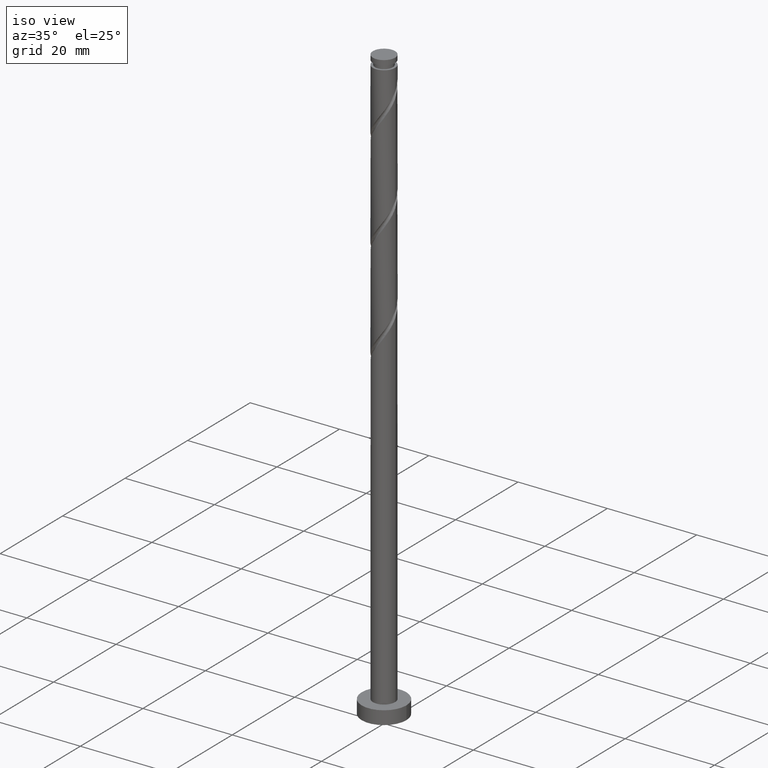
[diagram: clean part render]
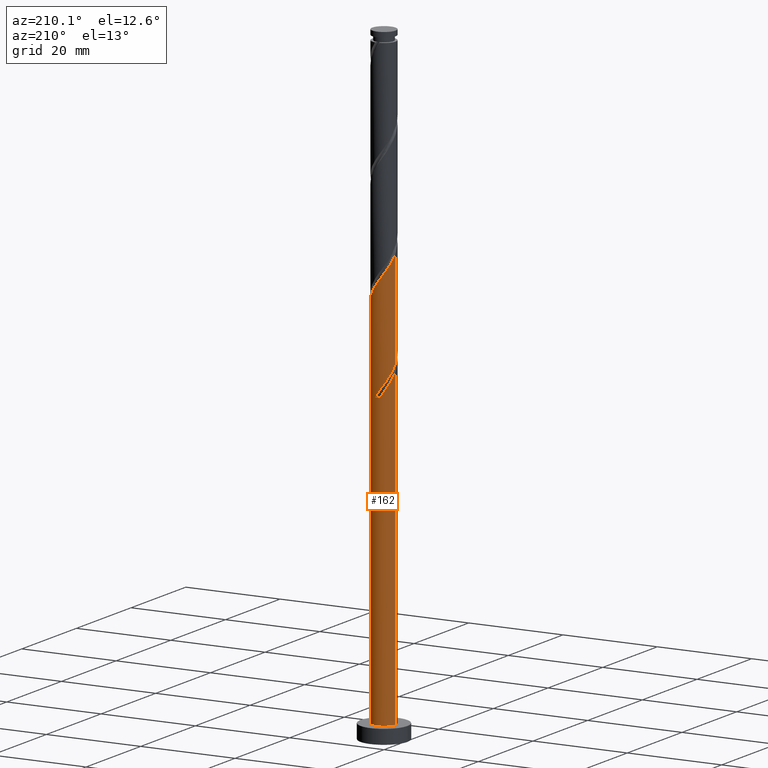
[diagram: tour spotlight — one face highlighted and labeled with its STEP entity id]
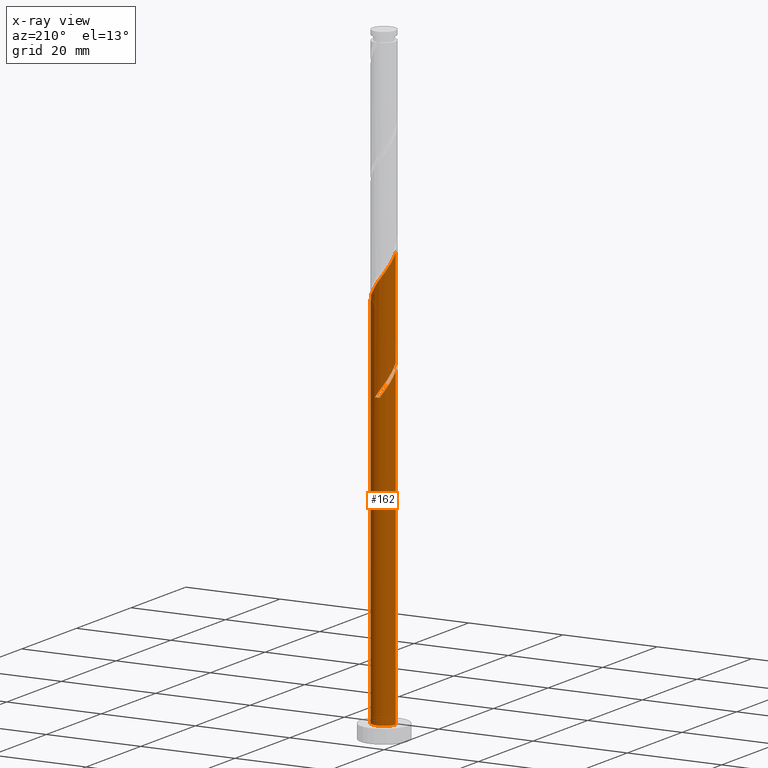
[diagram: x-ray of the same camera — body ghosted, this tour face saturated]
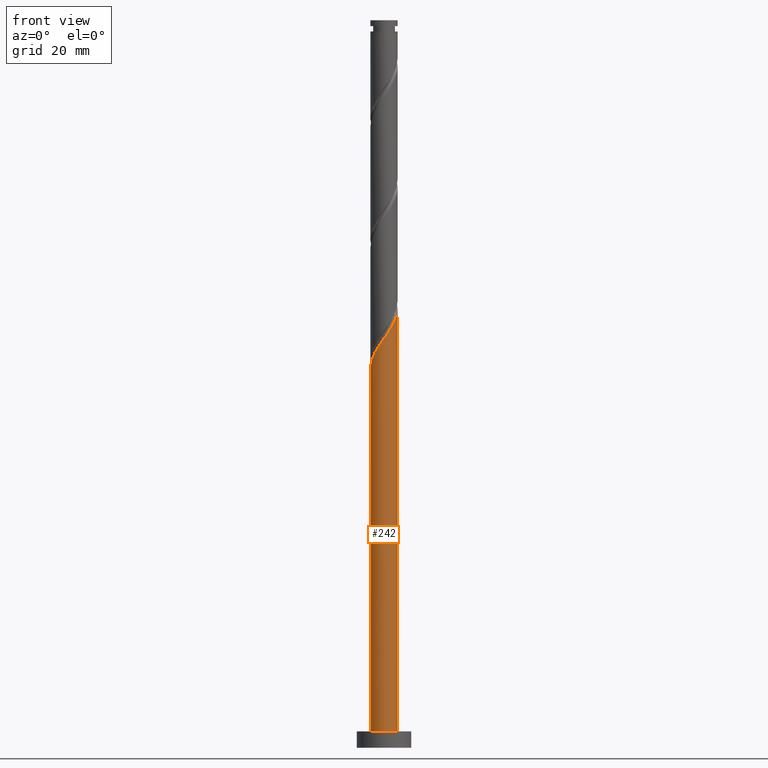
[diagram: tour spotlight — one face highlighted and labeled with its STEP entity id]
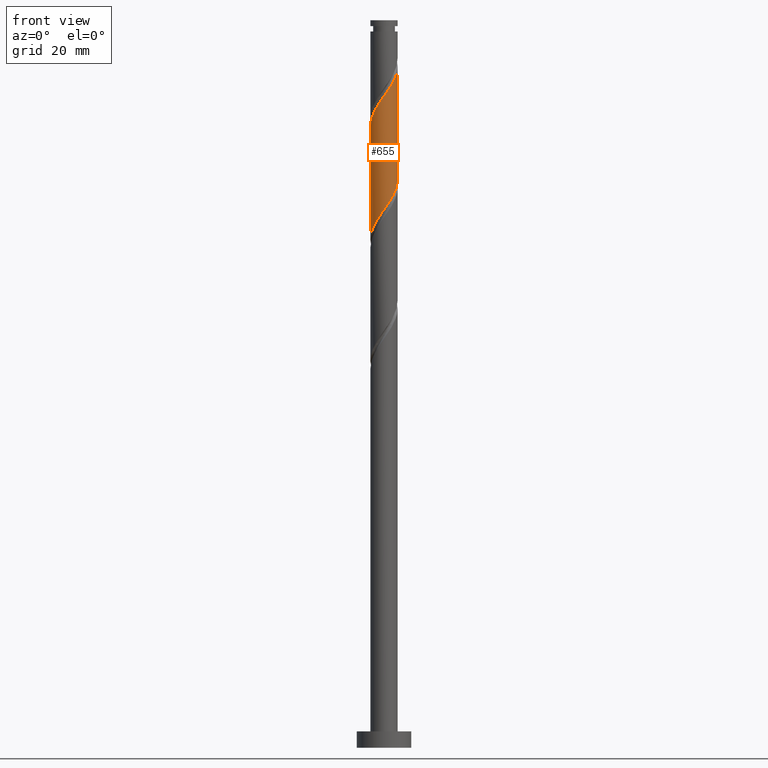
[diagram: tour spotlight — one face highlighted and labeled with its STEP entity id]
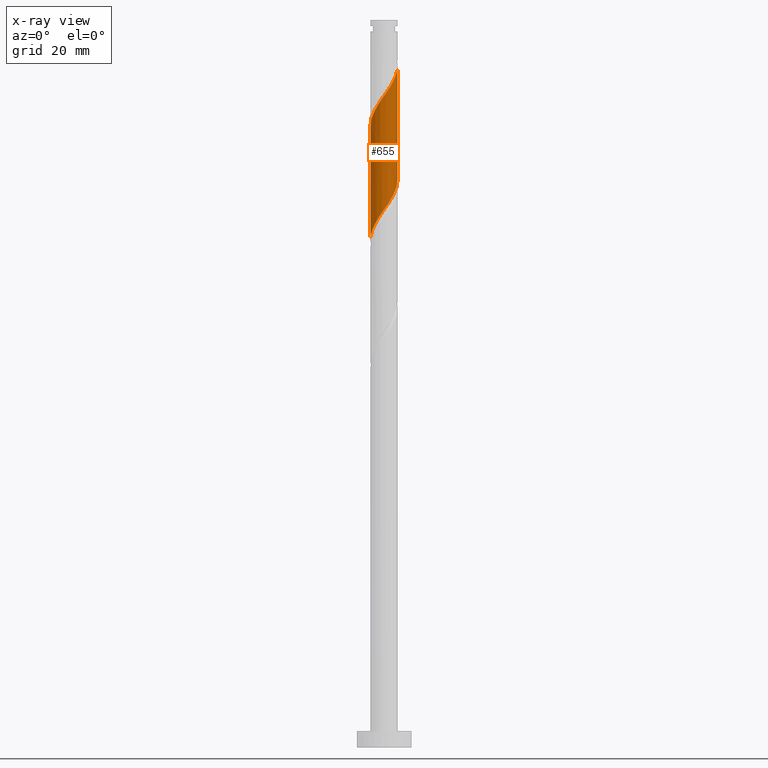
[diagram: x-ray of the same camera — body ghosted, this tour face saturated]
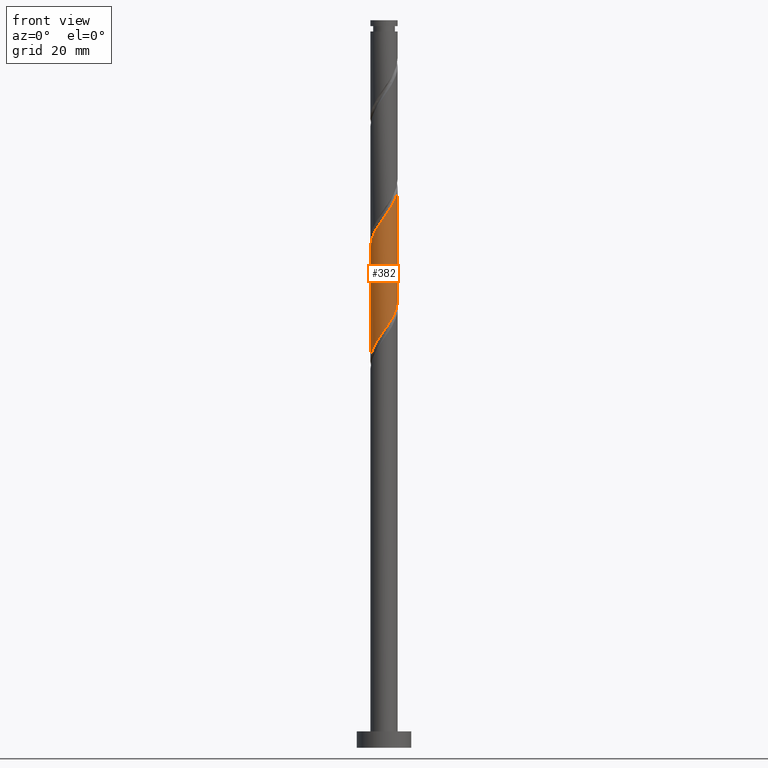
[diagram: tour spotlight — one face highlighted and labeled with its STEP entity id]
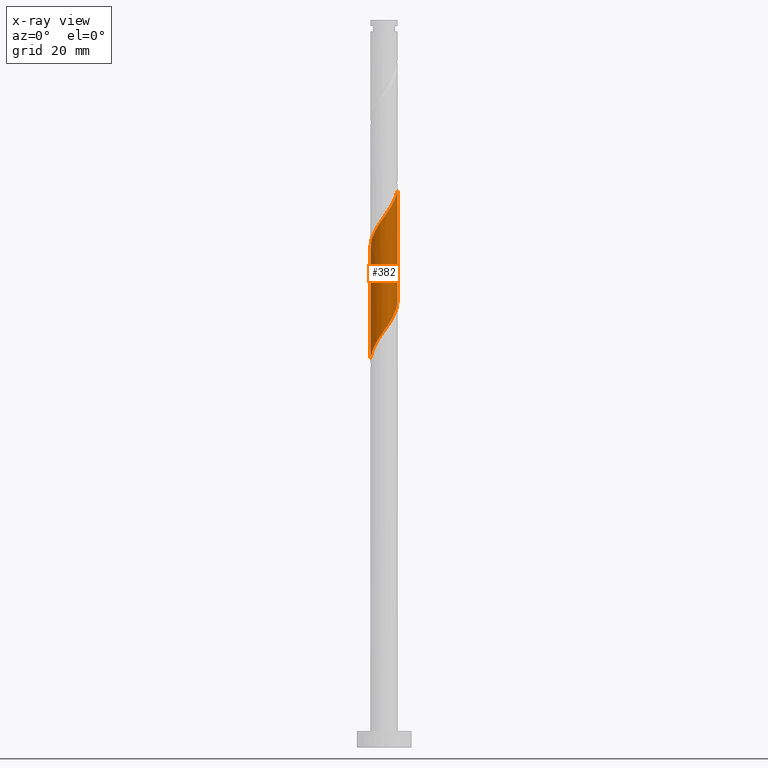
[diagram: x-ray of the same camera — body ghosted, this tour face saturated]
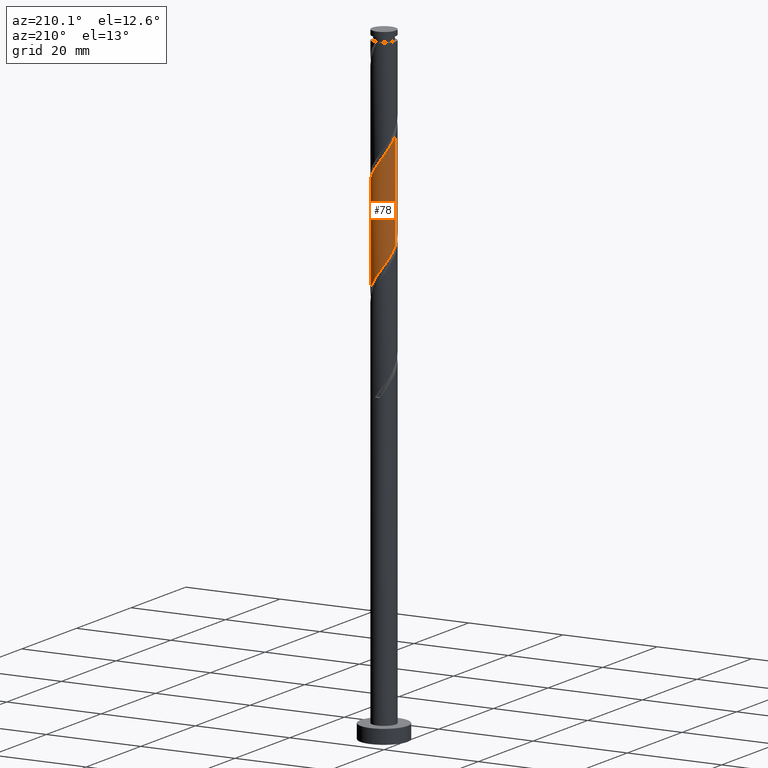
[diagram: tour spotlight — one face highlighted and labeled with its STEP entity id]
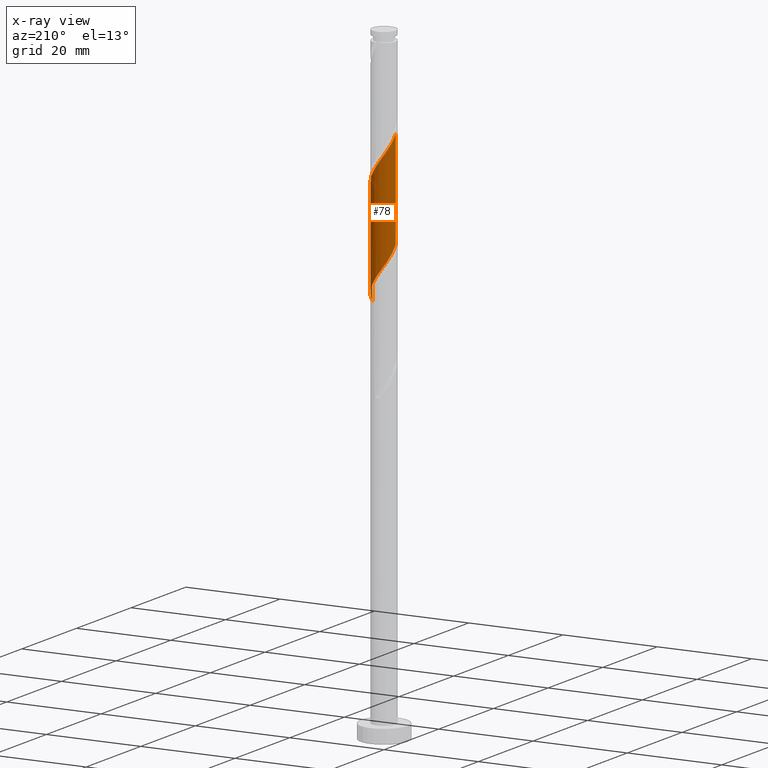
[diagram: x-ray of the same camera — body ghosted, this tour face saturated]
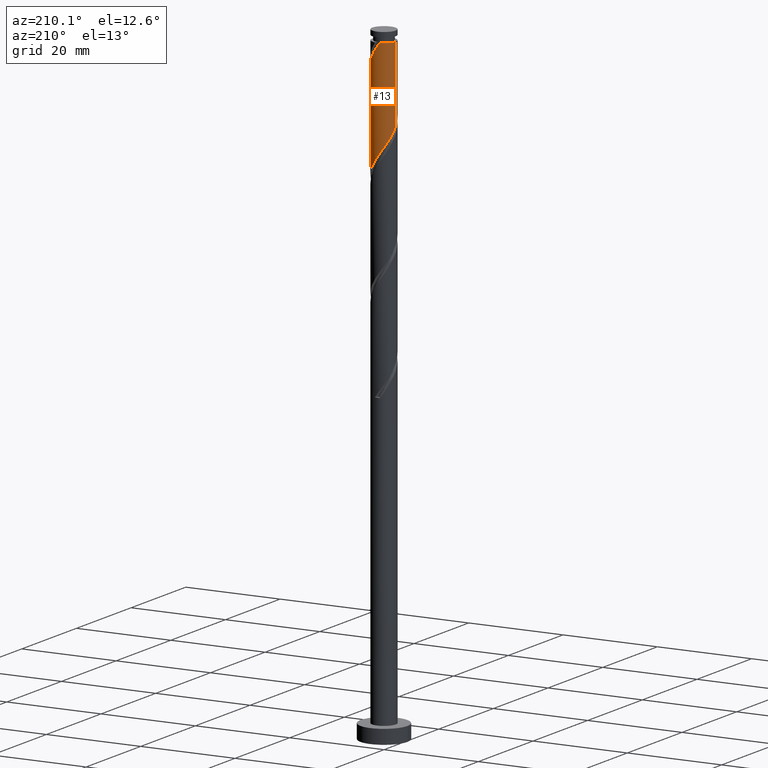
[diagram: tour spotlight — one face highlighted and labeled with its STEP entity id]
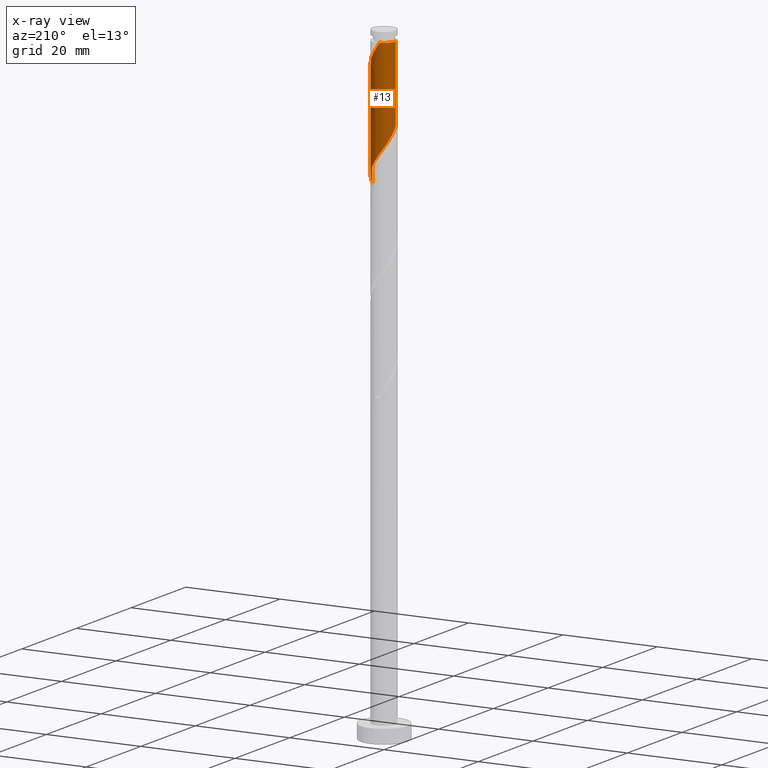
[diagram: x-ray of the same camera — body ghosted, this tour face saturated]
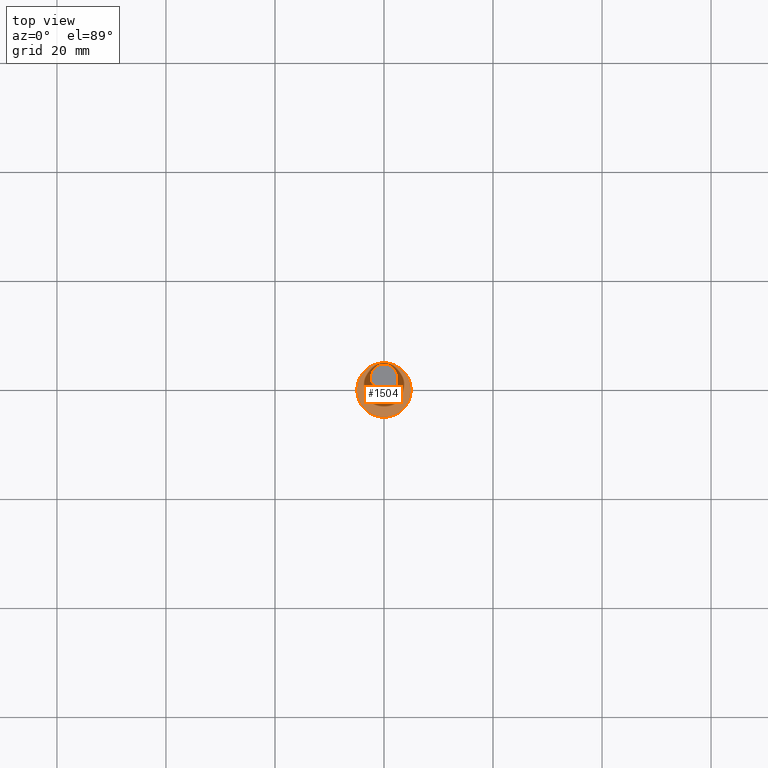
[diagram: tour spotlight — one face highlighted and labeled with its STEP entity id]
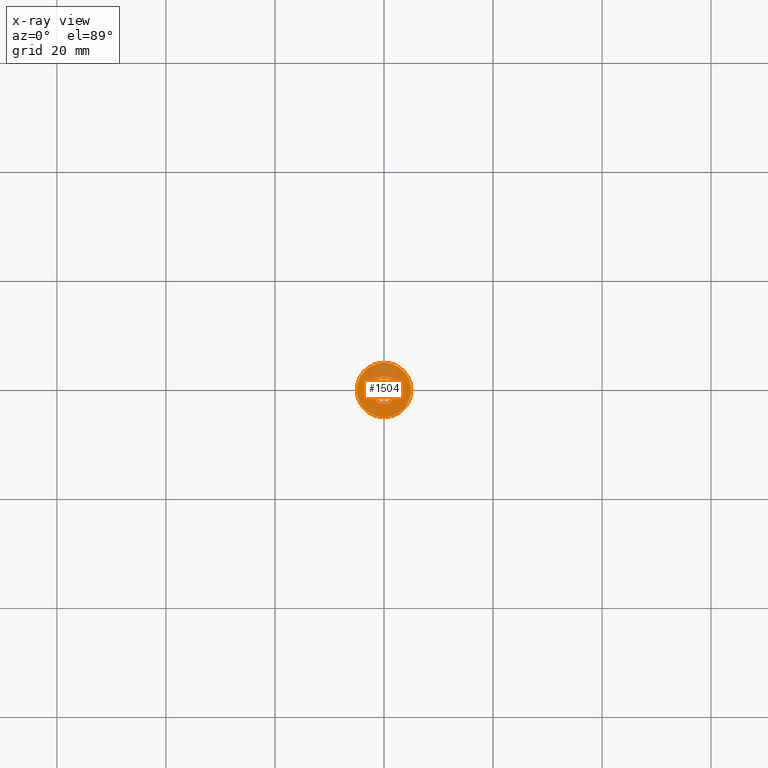
[diagram: x-ray of the same camera — body ghosted, this tour face saturated]
A machine part: a face-by-face anatomy tour. The part has 21 B-rep faces; the first image is the clean iso view, then the 7 largest visible faces are spotlighted one at a time (largest first), each with its STEP entity span.

Face 1 — auxiliary view, entity #162. An x-ray twin of the same camera follows (body ghosted, this face saturated) — the face is partly hidden behind the body. In plain terms, the highlighted cylindrical surface (edge-blend (fillet) strip) has radius 2.5 mm, axis along (-0, -0, -1).
Definition (entity closure, byte-faithful):
#3 = CARTESIAN_POINT ( 'NONE',  ( 1.689672165344846766, 1.842554741020977493, 83.56003682468464433 ) ) ;
#10 = EDGE_CURVE ( 'NONE', #927, #1013, #74, .T. ) ;
#74 =( BOUNDED_CURVE ( )  B_SPLINE_CURVE ( 2, ( #558, #1070, #792, #444, #1160, #421, #1289, #1283, #803, #941, #93, #1052, #85 ),
 .UNSPECIFIED., .F., .T. ) 
 B_SPLINE_CURVE_WITH_KNOTS ( ( 3, 2, 2, 2, 2, 2, 3 ),
 ( 0.9295322023138551382, 0.9375000000000000000, 0.9499999999999999556, 0.9625000000000000222, 0.9749999999999999778, 0.9875000000000000444, 1.000000000000000000 ),
 .UNSPECIFIED. ) 
 CURVE ( )  GEOMETRIC_REPRESENTATION_ITEM ( )  RATIONAL_B_SPLINE_CURVE ( ( 0.9039174447099374010, 0.9019565955404665880, 0.9090909090909150558, 0.8978984914501311199, 0.9090909090909150558, 0.8978984914501311199, 0.9090909090909150558, 0.8978984914501311199, 0.9090909090909150558, 0.8978984914501311199, 0.9090909090909150558, 0.8978984914501311199, 0.9090909090909150558 ) ) 
 REPRESENTATION_ITEM ( '' )  );
#79 = DIRECTION ( 'NONE',  ( 0.000000000000000000, -0.000000000000000000, -1.000000000000000000 ) ) ;
#85 = CARTESIAN_POINT ( 'NONE',  ( 0.4974937185533113704, 2.449999999999998845, 64.65603682468460534 ) ) ;
#92 = CARTESIAN_POINT ( 'NONE',  ( 0.2839469933725893291, 2.483822478550891333, 85.78403682468461966 ) ) ;
#93 = CARTESIAN_POINT ( 'NONE',  ( -0.2839469933725877193, 2.483822478550886004, 65.76803682468460011 ) ) ;
#96 = VERTEX_POINT ( 'NONE', #780 ) ;
#104 = CARTESIAN_POINT ( 'NONE',  ( -0.1094518397581960290, 2.528795264178041791, 86.34003682468463126 ) ) ;
#119 = CARTESIAN_POINT ( 'NONE',  ( 1.981504166768774500, 1.574936960780885853, 83.00403682468460431 ) ) ;
#130 = CARTESIAN_POINT ( 'NONE',  ( -0.4974937185533105932, 2.450000000000004174, 64.65603682468460534 ) ) ;
#156 = DIRECTION ( 'NONE',  ( -1.000000000000000000, 0.000000000000000000, 0.000000000000000000 ) ) ;
#162 = ADVANCED_FACE ( 'NONE', ( #770 ), #546, .T. ) ;
#169 = VERTEX_POINT ( 'NONE', #895 ) ;
#201 = CARTESIAN_POINT ( 'NONE',  ( -2.483822478550890889, 0.2839469933725888295, 69.10403682468462705 ) ) ;
#202 = ORIENTED_EDGE ( 'NONE', *, *, #1170, .T. ) ;
#224 = CARTESIAN_POINT ( 'NONE',  ( -2.500000000000004441, -3.028606762207541961E-15, 69.50634692236627643 ) ) ;
#280 = VECTOR ( 'NONE', #1046, 1000.000000000000000 ) ;
#307 = CARTESIAN_POINT ( 'NONE',  ( 0.000000000000000000, 0.000000000000000000, 64.65603682468460534 ) ) ;
#322 = DIRECTION ( 'NONE',  ( -1.000000000000000000, 0.000000000000000000, 0.000000000000000000 ) ) ;
#346 = CARTESIAN_POINT ( 'NONE',  ( 2.500000000000004441, 2.623792987060989674E-15, 80.62634692236628098 ) ) ;
#357 = CARTESIAN_POINT ( 'NONE',  ( -2.500000000000004441, -3.028606762207541172E-15, 91.74634692236628553 ) ) ;
#365 = AXIS2_PLACEMENT_3D ( 'NONE', #307, #79, #322 ) ;
#366 = CARTESIAN_POINT ( 'NONE',  ( -0.4974937185533105932, 2.450000000000004174, 86.89603682468462864 ) ) ;
#413 = CARTESIAN_POINT ( 'NONE',  ( -1.842554741020977493, 1.689672165344846322, 66.88003682468460909 ) ) ;
#421 = CARTESIAN_POINT ( 'NONE',  ( -1.981504166768770947, 1.574936960780884743, 68.54803682468460124 ) ) ;
#444 = CARTESIAN_POINT ( 'NONE',  ( -2.371204735821961673, 0.8855355973484249077, 69.66003682468462443 ) ) ;
#449 = ORIENTED_EDGE ( 'NONE', *, *, #722, .F. ) ;
#453 = EDGE_CURVE ( 'NONE', #1297, #1550, #1367, .T. ) ;
#478 = CARTESIAN_POINT ( 'NONE',  ( 1.037592995212146540, 2.274511107092403783, 84.67203682468462489 ) ) ;
#501 = EDGE_CURVE ( 'NONE', #169, #927, #1187, .T. ) ;
#507 = ORIENTED_EDGE ( 'NONE', *, *, #1138, .T. ) ;
#516 = AXIS2_PLACEMENT_3D ( 'NONE', #918, #777, #1392 ) ;
#538 = EDGE_CURVE ( 'NONE', #1382, #1013, #1535, .T. ) ;
#540 = VECTOR ( 'NONE', #646, 1000.000000000000000 ) ;
#546 = CYLINDRICAL_SURFACE ( 'NONE', #731, 2.500000000000000000 ) ;
#558 = CARTESIAN_POINT ( 'NONE',  ( -2.500000000000000000, -3.298482612305268335E-15, 70.92572672700293879 ) ) ;
#570 = ORIENTED_EDGE ( 'NONE', *, *, #677, .F. ) ;
#589 = CARTESIAN_POINT ( 'NONE',  ( 2.371204735821965226, 0.8855355973484251297, 81.89203682468458112 ) ) ;
#595 =( BOUNDED_CURVE ( )  B_SPLINE_CURVE ( 2, ( #939, #1417, #640, #1505, #413, #907, #1381, #1264, #201, #720, #224 ),
 .UNSPECIFIED., .F., .T. ) 
 B_SPLINE_CURVE_WITH_KNOTS ( ( 3, 2, 2, 2, 2, 3 ),
 ( 0.000000000000000000, 0.01249999999999995559, 0.02500000000000002220, 0.03749999999999997780, 0.05000000000000004441, 0.05453220231385535327 ),
 .UNSPECIFIED. ) 
 CURVE ( )  GEOMETRIC_REPRESENTATION_ITEM ( )  RATIONAL_B_SPLINE_CURVE ( ( 0.9090909090909219392, 0.8978984914501382253, 0.9090909090909219392, 0.8978984914501382253, 0.9090909090909219392, 0.8978984914501382253, 0.9090909090909219392, 0.8978984914501382253, 0.9090909090909219392, 0.9050328050005863600, 0.9039174447099443954 ) ) 
 REPRESENTATION_ITEM ( '' )  );
#611 = CIRCLE ( 'NONE', #516, 2.500000000000000000 ) ;
#618 = ORIENTED_EDGE ( 'NONE', *, *, #453, .F. ) ;
#640 = CARTESIAN_POINT ( 'NONE',  ( -1.230236279064655935, 2.176354451295370751, 65.76803682468461432 ) ) ;
#646 = DIRECTION ( 'NONE',  ( -0.000000000000000000, -0.000000000000000000, -1.000000000000000000 ) ) ;
#660 = CARTESIAN_POINT ( 'NONE',  ( 0.4974937185533113704, 2.449999999999998845, 64.65603682468460534 ) ) ;
#676 = LINE ( 'NONE', #1292, #540 ) ;
#677 = EDGE_CURVE ( 'NONE', #1382, #1297, #595, .T. ) ;
#693 = CARTESIAN_POINT ( 'NONE',  ( -2.274511107092403783, 1.037592995212145874, 90.23203682468458453 ) ) ;
#702 = CARTESIAN_POINT ( 'NONE',  ( 2.500000000000003109, 0.2512594538148072432, 80.98322374270564694 ) ) ;
#720 = CARTESIAN_POINT ( 'NONE',  ( -2.500000000000004885, 0.1424343436160775411, 69.30404004441572852 ) ) ;
#722 = EDGE_CURVE ( 'NONE', #96, #169, #1369, .T. ) ;
#731 = AXIS2_PLACEMENT_3D ( 'NONE', #1034, #1356, #156 ) ;
#770 = FACE_OUTER_BOUND ( 'NONE', #839, .T. ) ;
#777 = DIRECTION ( 'NONE',  ( 0.000000000000000000, 0.000000000000000000, 1.000000000000000000 ) ) ;
#780 = CARTESIAN_POINT ( 'NONE',  ( 2.500000000000004441, 2.623792987060989674E-15, 80.62634692236628098 ) ) ;
#788 = CARTESIAN_POINT ( 'NONE',  ( -2.500000000000000000, 0.000000000000000000, 133.4399999999999977 ) ) ;
#792 = CARTESIAN_POINT ( 'NONE',  ( -2.449999999999998845, 0.4974937185533108153, 70.21603682468460761 ) ) ;
#803 = CARTESIAN_POINT ( 'NONE',  ( -1.037592995212143432, 2.274511107092398454, 66.88003682468460909 ) ) ;
#822 = CARTESIAN_POINT ( 'NONE',  ( -1.842554741020977493, 1.689672165344846322, 89.12003682468464660 ) ) ;
#835 = CARTESIAN_POINT ( 'NONE',  ( 0.6773458265033740489, 2.438849692923737766, 85.22803682468457964 ) ) ;
#839 = EDGE_LOOP ( 'NONE', ( #449, #507, #202, #618, #570, #919, #847, #1020 ) ) ;
#847 = ORIENTED_EDGE ( 'NONE', *, *, #10, .F. ) ;
#895 = CARTESIAN_POINT ( 'NONE',  ( -2.500000000000004441, -3.028606762207541961E-15, 91.74634692236628553 ) ) ;
#907 = CARTESIAN_POINT ( 'NONE',  ( -2.110172521261068024, 1.397840163920917034, 67.43603682468459226 ) ) ;
#918 = CARTESIAN_POINT ( 'NONE',  ( 0.000000000000000000, 0.000000000000000000, 3.000000000000000000 ) ) ;
#919 = ORIENTED_EDGE ( 'NONE', *, *, #538, .T. ) ;
#927 = VERTEX_POINT ( 'NONE', #1100 ) ;
#939 = CARTESIAN_POINT ( 'NONE',  ( -0.4974937185533105932, 2.450000000000004174, 64.65603682468460534 ) ) ;
#941 = CARTESIAN_POINT ( 'NONE',  ( -0.6773458265033723835, 2.438849692923735102, 66.32403682468461170 ) ) ;
#957 = CARTESIAN_POINT ( 'NONE',  ( 2.176354451295370751, 1.230236279064655713, 82.44803682468463535 ) ) ;
#966 = CARTESIAN_POINT ( 'NONE',  ( -1.574936960780886519, 1.981504166768774056, 88.56403682468460659 ) ) ;
#975 = CARTESIAN_POINT ( 'NONE',  ( -2.483822478550890889, 0.2839469933725888295, 91.34403682468462193 ) ) ;
#1013 = VERTEX_POINT ( 'NONE', #660 ) ;
#1015 = DIRECTION ( 'NONE',  ( -0.000000000000000000, -0.000000000000000000, -1.000000000000000000 ) ) ;
#1020 = ORIENTED_EDGE ( 'NONE', *, *, #501, .F. ) ;
#1034 = CARTESIAN_POINT ( 'NONE',  ( 0.000000000000000000, 0.000000000000000000, 133.4399999999999977 ) ) ;
#1046 = DIRECTION ( 'NONE',  ( -0.000000000000000000, -0.000000000000000000, -1.000000000000000000 ) ) ;
#1052 = CARTESIAN_POINT ( 'NONE',  ( 0.1094518397581969449, 2.528795264178039570, 65.21203682468460272 ) ) ;
#1070 = CARTESIAN_POINT ( 'NONE',  ( -2.500000000000000444, 0.2512594538148018586, 70.56884990666357282 ) ) ;
#1088 = CARTESIAN_POINT ( 'NONE',  ( 2.450000000000004174, 0.4974937185533109818, 81.33603682468462637 ) ) ;
#1100 = CARTESIAN_POINT ( 'NONE',  ( -2.500000000000000000, -3.298482612305268335E-15, 70.92572672700295300 ) ) ;
#1123 = CARTESIAN_POINT ( 'NONE',  ( 2.500000000000000000, 3.061616997868383141E-16, 3.000000000000000000 ) ) ;
#1138 = EDGE_CURVE ( 'NONE', #96, #1364, #676, .T. ) ;
#1151 = CARTESIAN_POINT ( 'NONE',  ( -2.500000000000000000, 0.000000000000000000, 3.000000000000000000 ) ) ;
#1160 = CARTESIAN_POINT ( 'NONE',  ( -2.176354451295365866, 1.230236279064654381, 69.10403682468461284 ) ) ;
#1170 = EDGE_CURVE ( 'NONE', #1364, #1550, #611, .T. ) ;
#1187 = LINE ( 'NONE', #788, #280 ) ;
#1193 = CARTESIAN_POINT ( 'NONE',  ( -2.500000000000004885, 0.1424343436160790399, 91.54404004441570919 ) ) ;
#1202 = CARTESIAN_POINT ( 'NONE',  ( -2.438849692923737766, 0.6773458265033736048, 90.78803682468462455 ) ) ;
#1264 = CARTESIAN_POINT ( 'NONE',  ( -2.438849692923737766, 0.6773458265033736048, 68.54803682468460124 ) ) ;
#1283 = CARTESIAN_POINT ( 'NONE',  ( -1.397840163920914147, 2.110172521261064915, 67.43603682468462068 ) ) ;
#1289 = CARTESIAN_POINT ( 'NONE',  ( -1.689672165344842547, 1.842554741020974385, 67.99203682468460386 ) ) ;
#1292 = CARTESIAN_POINT ( 'NONE',  ( 2.500000000000000000, 3.061616997868383141E-16, 133.4399999999999977 ) ) ;
#1297 = VERTEX_POINT ( 'NONE', #1313 ) ;
#1310 = CARTESIAN_POINT ( 'NONE',  ( -2.110172521261068024, 1.397840163920917034, 89.67603682468460136 ) ) ;
#1313 = CARTESIAN_POINT ( 'NONE',  ( -2.500000000000004441, -3.028606762207541961E-15, 69.50634692236629064 ) ) ;
#1356 = DIRECTION ( 'NONE',  ( -0.000000000000000000, -0.000000000000000000, -1.000000000000000000 ) ) ;
#1364 = VERTEX_POINT ( 'NONE', #1123 ) ;
#1367 = LINE ( 'NONE', #1486, #1483 ) ;
#1369 =( BOUNDED_CURVE ( )  B_SPLINE_CURVE ( 2, ( #346, #702, #1088, #589, #957, #119, #3, #1458, #478, #835, #92, #104, #366, #1544, #1426, #966, #822, #1310, #693, #1202, #975, #1193, #357 ),
 .UNSPECIFIED., .F., .T. ) 
 B_SPLINE_CURVE_WITH_KNOTS ( ( 3, 2, 2, 2, 2, 2, 2, 2, 2, 2, 2, 3 ),
 ( 0.1795322023138553325, 0.1875000000000000000, 0.1999999999999999556, 0.2125000000000000222, 0.2249999999999999778, 0.2375000000000000444, 0.2500000000000000000, 0.2624999999999999556, 0.2750000000000000222, 0.2874999999999999778, 0.3000000000000000444, 0.3045322023138553047 ),
 .UNSPECIFIED. ) 
 CURVE ( )  GEOMETRIC_REPRESENTATION_ITEM ( )  RATIONAL_B_SPLINE_CURVE ( ( 0.9039174447099441734, 0.9019565955404738045, 0.9090909090909219392, 0.8978984914501382253, 0.9090909090909219392, 0.8978984914501382253, 0.9090909090909219392, 0.8978984914501382253, 0.9090909090909219392, 0.8978984914501382253, 0.9090909090909219392, 0.8978984914501382253, 0.9090909090909219392, 0.8978984914501382253, 0.9090909090909219392, 0.8978984914501382253, 0.9090909090909219392, 0.8978984914501382253, 0.9090909090909219392, 0.8978984914501382253, 0.9090909090909219392, 0.9050328050005862490, 0.9039174447099441734 ) ) 
 REPRESENTATION_ITEM ( '' )  );
#1381 = CARTESIAN_POINT ( 'NONE',  ( -2.274511107092403783, 1.037592995212145874, 67.99203682468464649 ) ) ;
#1382 = VERTEX_POINT ( 'NONE', #130 ) ;
#1392 = DIRECTION ( 'NONE',  ( 1.000000000000000000, 0.000000000000000000, 0.000000000000000000 ) ) ;
#1417 = CARTESIAN_POINT ( 'NONE',  ( -0.8855355973484255738, 2.371204735821965226, 65.21203682468460272 ) ) ;
#1426 = CARTESIAN_POINT ( 'NONE',  ( -1.230236279064655935, 2.176354451295370751, 88.00803682468463762 ) ) ;
#1458 = CARTESIAN_POINT ( 'NONE',  ( 1.397840163920917922, 2.110172521261067580, 84.11603682468458487 ) ) ;
#1483 = VECTOR ( 'NONE', #1015, 1000.000000000000000 ) ;
#1486 = CARTESIAN_POINT ( 'NONE',  ( -2.500000000000000000, 0.000000000000000000, 133.4399999999999977 ) ) ;
#1505 = CARTESIAN_POINT ( 'NONE',  ( -1.574936960780886519, 1.981504166768774056, 66.32403682468459749 ) ) ;
#1535 = CIRCLE ( 'NONE', #365, 2.500000000000000000 ) ;
#1544 = CARTESIAN_POINT ( 'NONE',  ( -0.8855355973484255738, 2.371204735821965226, 87.45203682468459760 ) ) ;
#1550 = VERTEX_POINT ( 'NONE', #1151 ) ;

Face 2 — front view, entity #242. In plain terms, the highlighted cylindrical surface (edge-blend (fillet) strip) has radius 2.5 mm, axis along (-0, -0, -1).
Definition (entity closure, byte-faithful):
#29 = CARTESIAN_POINT ( 'NONE',  ( -2.176354451295370751, -1.230236279064655713, 71.32803682468463080 ) ) ;
#45 = CARTESIAN_POINT ( 'NONE',  ( -2.500000000000003109, -0.2512594538148084089, 69.86322374270567082 ) ) ;
#96 = VERTEX_POINT ( 'NONE', #780 ) ;
#140 = EDGE_CURVE ( 'NONE', #1550, #1364, #1499, .T. ) ;
#214 = DIRECTION ( 'NONE',  ( -1.000000000000000000, 0.000000000000000000, 0.000000000000000000 ) ) ;
#240 = CARTESIAN_POINT ( 'NONE',  ( -1.037592995212146318, -2.274511107092403783, 73.55203682468464876 ) ) ;
#242 = ADVANCED_FACE ( 'NONE', ( #790 ), #811, .T. ) ;
#252 = CARTESIAN_POINT ( 'NONE',  ( 2.483822478550890889, -0.2839469933725891626, 80.22403682468460318 ) ) ;
#265 = CARTESIAN_POINT ( 'NONE',  ( 1.842554741020977493, -1.689672165344846322, 78.00003682468462785 ) ) ;
#284 = DIRECTION ( 'NONE',  ( 1.000000000000000000, 0.000000000000000000, 0.000000000000000000 ) ) ;
#306 = AXIS2_PLACEMENT_3D ( 'NONE', #680, #326, #214 ) ;
#326 = DIRECTION ( 'NONE',  ( -0.000000000000000000, -0.000000000000000000, -1.000000000000000000 ) ) ;
#374 = CARTESIAN_POINT ( 'NONE',  ( 1.230236279064655713, -2.176354451295370751, 76.88803682468461886 ) ) ;
#419 = CARTESIAN_POINT ( 'NONE',  ( 0.000000000000000000, 0.000000000000000000, 3.000000000000000000 ) ) ;
#453 = EDGE_CURVE ( 'NONE', #1297, #1550, #1367, .T. ) ;
#482 = AXIS2_PLACEMENT_3D ( 'NONE', #419, #524, #284 ) ;
#508 = CARTESIAN_POINT ( 'NONE',  ( -2.371204735821965226, -0.8855355973484255738, 70.77203682468457657 ) ) ;
#524 = DIRECTION ( 'NONE',  ( 0.000000000000000000, 0.000000000000000000, 1.000000000000000000 ) ) ;
#540 = VECTOR ( 'NONE', #646, 1000.000000000000000 ) ;
#605 = CARTESIAN_POINT ( 'NONE',  ( -2.450000000000004174, -0.4974937185533113704, 70.21603682468460761 ) ) ;
#613 = CARTESIAN_POINT ( 'NONE',  ( -1.397840163920917034, -2.110172521261067580, 72.99603682468459454 ) ) ;
#646 = DIRECTION ( 'NONE',  ( -0.000000000000000000, -0.000000000000000000, -1.000000000000000000 ) ) ;
#676 = LINE ( 'NONE', #1292, #540 ) ;
#680 = CARTESIAN_POINT ( 'NONE',  ( 0.000000000000000000, 0.000000000000000000, 133.4399999999999977 ) ) ;
#735 = CARTESIAN_POINT ( 'NONE',  ( 2.500000000000004441, -0.1424343436160785681, 80.42404004441569043 ) ) ;
#749 = CARTESIAN_POINT ( 'NONE',  ( 2.274511107092403783, -1.037592995212146318, 79.11203682468463683 ) ) ;
#780 = CARTESIAN_POINT ( 'NONE',  ( 2.500000000000004441, 2.623792987060989674E-15, 80.62634692236628098 ) ) ;
#790 = FACE_OUTER_BOUND ( 'NONE', #1067, .T. ) ;
#811 = CYLINDRICAL_SURFACE ( 'NONE', #306, 2.500000000000000000 ) ;
#869 = CARTESIAN_POINT ( 'NONE',  ( 2.110172521261067580, -1.397840163920917922, 78.55603682468458260 ) ) ;
#944 = ORIENTED_EDGE ( 'NONE', *, *, #1138, .F. ) ;
#989 = CARTESIAN_POINT ( 'NONE',  ( -2.500000000000004441, -3.028606762207541961E-15, 69.50634692236627643 ) ) ;
#996 = CARTESIAN_POINT ( 'NONE',  ( -0.6773458265033738268, -2.438849692923737766, 74.10803682468458931 ) ) ;
#1015 = DIRECTION ( 'NONE',  ( -0.000000000000000000, -0.000000000000000000, -1.000000000000000000 ) ) ;
#1048 =( BOUNDED_CURVE ( )  B_SPLINE_CURVE ( 2, ( #989, #45, #605, #508, #29, #1344, #1482, #613, #240, #996, #1221, #1359, #1475, #1470, #374, #1353, #265, #869, #749, #1349, #252, #735, #1228 ),
 .UNSPECIFIED., .F., .T. ) 
 B_SPLINE_CURVE_WITH_KNOTS ( ( 3, 2, 2, 2, 2, 2, 2, 2, 2, 2, 2, 3 ),
 ( 0.05453220231385535327, 0.06250000000000000000, 0.07499999999999995559, 0.08750000000000002220, 0.09999999999999997780, 0.1125000000000000444, 0.1250000000000000000, 0.1374999999999999556, 0.1500000000000000222, 0.1624999999999999778, 0.1750000000000000444, 0.1795322023138553325 ),
 .UNSPECIFIED. ) 
 CURVE ( )  GEOMETRIC_REPRESENTATION_ITEM ( )  RATIONAL_B_SPLINE_CURVE ( ( 0.9039174447099443954, 0.9019565955404738045, 0.9090909090909219392, 0.8978984914501382253, 0.9090909090909219392, 0.8978984914501382253, 0.9090909090909219392, 0.8978984914501382253, 0.9090909090909219392, 0.8978984914501382253, 0.9090909090909219392, 0.8978984914501382253, 0.9090909090909219392, 0.8978984914501382253, 0.9090909090909219392, 0.8978984914501382253, 0.9090909090909219392, 0.8978984914501382253, 0.9090909090909219392, 0.8978984914501382253, 0.9090909090909219392, 0.9050328050005862490, 0.9039174447099441734 ) ) 
 REPRESENTATION_ITEM ( '' )  );
#1067 = EDGE_LOOP ( 'NONE', ( #944, #1498, #1372, #1135 ) ) ;
#1123 = CARTESIAN_POINT ( 'NONE',  ( 2.500000000000000000, 3.061616997868383141E-16, 3.000000000000000000 ) ) ;
#1135 = ORIENTED_EDGE ( 'NONE', *, *, #140, .T. ) ;
#1138 = EDGE_CURVE ( 'NONE', #96, #1364, #676, .T. ) ;
#1151 = CARTESIAN_POINT ( 'NONE',  ( -2.500000000000000000, 0.000000000000000000, 3.000000000000000000 ) ) ;
#1221 = CARTESIAN_POINT ( 'NONE',  ( -0.2839469933725890516, -2.483822478550890889, 74.66403682468461511 ) ) ;
#1228 = CARTESIAN_POINT ( 'NONE',  ( 2.500000000000004441, 2.623792987060989674E-15, 80.62634692236628098 ) ) ;
#1292 = CARTESIAN_POINT ( 'NONE',  ( 2.500000000000000000, 3.061616997868383141E-16, 133.4399999999999977 ) ) ;
#1297 = VERTEX_POINT ( 'NONE', #1313 ) ;
#1313 = CARTESIAN_POINT ( 'NONE',  ( -2.500000000000004441, -3.028606762207541961E-15, 69.50634692236629064 ) ) ;
#1344 = CARTESIAN_POINT ( 'NONE',  ( -1.981504166768774056, -1.574936960780886519, 71.88403682468459976 ) ) ;
#1349 = CARTESIAN_POINT ( 'NONE',  ( 2.438849692923737766, -0.6773458265033740489, 79.66803682468457737 ) ) ;
#1353 = CARTESIAN_POINT ( 'NONE',  ( 1.574936960780885853, -1.981504166768774500, 77.44403682468458783 ) ) ;
#1359 = CARTESIAN_POINT ( 'NONE',  ( 0.1094518397581962649, -2.528795264178041791, 75.22003682468458408 ) ) ;
#1364 = VERTEX_POINT ( 'NONE', #1123 ) ;
#1367 = LINE ( 'NONE', #1486, #1483 ) ;
#1372 = ORIENTED_EDGE ( 'NONE', *, *, #453, .T. ) ;
#1405 = EDGE_CURVE ( 'NONE', #1297, #96, #1048, .T. ) ;
#1470 = CARTESIAN_POINT ( 'NONE',  ( 0.8855355973484252408, -2.371204735821965226, 76.33203682468456464 ) ) ;
#1475 = CARTESIAN_POINT ( 'NONE',  ( 0.4974937185533111483, -2.450000000000004174, 75.77603682468460988 ) ) ;
#1482 = CARTESIAN_POINT ( 'NONE',  ( -1.689672165344846322, -1.842554741020977493, 72.44003682468461136 ) ) ;
#1483 = VECTOR ( 'NONE', #1015, 1000.000000000000000 ) ;
#1486 = CARTESIAN_POINT ( 'NONE',  ( -2.500000000000000000, 0.000000000000000000, 133.4399999999999977 ) ) ;
#1498 = ORIENTED_EDGE ( 'NONE', *, *, #1405, .F. ) ;
#1499 = CIRCLE ( 'NONE', #482, 2.500000000000000000 ) ;
#1550 = VERTEX_POINT ( 'NONE', #1151 ) ;

Face 3 — front view, entity #655. An x-ray twin of the same camera follows (body ghosted, this face saturated) — the face is partly hidden behind the body. In plain terms, the highlighted cylindrical surface (edge-blend (fillet) strip) has radius 2.5 mm, axis along (-0, -0, -1).
Definition (entity closure, byte-faithful):
#8 = CARTESIAN_POINT ( 'NONE',  ( 0.2839469933725874418, -2.483822478550886448, 99.12803682468458533 ) ) ;
#16 = VECTOR ( 'NONE', #559, 1000.000000000000000 ) ;
#19 = CARTESIAN_POINT ( 'NONE',  ( -2.274511107092398454, -1.037592995212143210, 94.68003682468459203 ) ) ;
#32 = CARTESIAN_POINT ( 'NONE',  ( 0.4974937185533111483, -2.450000000000004174, 120.2560368246846423 ) ) ;
#40 = CARTESIAN_POINT ( 'NONE',  ( 2.500000000000003997, 1.349379250488508412E-15, 125.1063469223662707 ) ) ;
#54 = CARTESIAN_POINT ( 'NONE',  ( -1.689672165344846322, -1.842554741020977493, 116.9200368246846296 ) ) ;
#76 = CARTESIAN_POINT ( 'NONE',  ( 2.500000000000000000, 2.968634351074741225E-15, 104.2857267270029524 ) ) ;
#94 = DIRECTION ( 'NONE',  ( -0.000000000000000000, -0.000000000000000000, -1.000000000000000000 ) ) ;
#106 = CYLINDRICAL_SURFACE ( 'NONE', #881, 2.500000000000000000 ) ;
#132 = CARTESIAN_POINT ( 'NONE',  ( -2.110172521261064471, -1.397840163920913703, 95.23603682468460363 ) ) ;
#138 = CARTESIAN_POINT ( 'NONE',  ( 0.1094518397581962649, -2.528795264178041791, 119.7000368246845738 ) ) ;
#147 = CARTESIAN_POINT ( 'NONE',  ( -2.176354451295370751, -1.230236279064655713, 115.8080368246846490 ) ) ;
#165 = EDGE_CURVE ( 'NONE', #1182, #709, #603, .T. ) ;
#188 = CARTESIAN_POINT ( 'NONE',  ( -2.500000000000000000, -3.298482612305268335E-15, 93.16572672700294788 ) ) ;
#192 = CARTESIAN_POINT ( 'NONE',  ( 2.449999999999998845, -0.4974937185533112594, 103.5760368246846213 ) ) ;
#213 = ORIENTED_EDGE ( 'NONE', *, *, #288, .F. ) ;
#254 = CARTESIAN_POINT ( 'NONE',  ( -1.842554741020974829, -1.689672165344842547, 95.79203682468460102 ) ) ;
#262 = CARTESIAN_POINT ( 'NONE',  ( -2.500000000000002665, -0.2512594538148121281, 114.3432237427057032 ) ) ;
#288 = EDGE_CURVE ( 'NONE', #1481, #1506, #320, .T. ) ;
#298 = CARTESIAN_POINT ( 'NONE',  ( -2.500000000000000000, 0.000000000000000000, 133.4399999999999977 ) ) ;
#317 = CARTESIAN_POINT ( 'NONE',  ( 1.037592995212143210, -2.274511107092398454, 100.2400368246846227 ) ) ;
#320 =( BOUNDED_CURVE ( )  B_SPLINE_CURVE ( 2, ( #555, #1527, #192, #670, #442, #450, #1415, #937, #317, #737, #8, #1464, #1455, #840, #497, #474, #254, #132, #19, #970, #1113, #1085, #1448 ),
 .UNSPECIFIED., .F., .T. ) 
 B_SPLINE_CURVE_WITH_KNOTS ( ( 3, 2, 2, 2, 2, 2, 2, 2, 2, 2, 2, 3 ),
 ( 0.5545322023138551382, 0.5625000000000000000, 0.5749999999999999556, 0.5875000000000000222, 0.5999999999999999778, 0.6125000000000000444, 0.6250000000000000000, 0.6374999999999999556, 0.6500000000000000222, 0.6624999999999999778, 0.6750000000000000444, 0.6795322023138551382 ),
 .UNSPECIFIED. ) 
 CURVE ( )  GEOMETRIC_REPRESENTATION_ITEM ( )  RATIONAL_B_SPLINE_CURVE ( ( 0.9039174447099374010, 0.9019565955404665880, 0.9090909090909150558, 0.8978984914501311199, 0.9090909090909150558, 0.8978984914501311199, 0.9090909090909150558, 0.8978984914501311199, 0.9090909090909150558, 0.8978984914501311199, 0.9090909090909150558, 0.8978984914501311199, 0.9090909090909150558, 0.8978984914501311199, 0.9090909090909150558, 0.8978984914501311199, 0.9090909090909150558, 0.8978984914501311199, 0.9090909090909150558, 0.8978984914501311199, 0.9090909090909150558, 0.9050328050005795877, 0.9039174447099374010 ) ) 
 REPRESENTATION_ITEM ( '' )  );
#395 = CARTESIAN_POINT ( 'NONE',  ( 1.842554741020977493, -1.689672165344846322, 122.4800368246846318 ) ) ;
#403 = CARTESIAN_POINT ( 'NONE',  ( -2.371204735821965226, -0.8855355973484255738, 115.2520368246845806 ) ) ;
#429 = EDGE_LOOP ( 'NONE', ( #1277, #1150, #1404, #213 ) ) ;
#442 = CARTESIAN_POINT ( 'NONE',  ( 2.176354451295365866, -1.230236279064655047, 102.4640368246845838 ) ) ;
#450 = CARTESIAN_POINT ( 'NONE',  ( 1.981504166768770947, -1.574936960780884965, 101.9080368246846291 ) ) ;
#474 = CARTESIAN_POINT ( 'NONE',  ( -1.574936960780884743, -1.981504166768770947, 96.34803682468459840 ) ) ;
#497 = CARTESIAN_POINT ( 'NONE',  ( -1.230236279064654381, -2.176354451295365866, 96.90403682468456736 ) ) ;
#514 = CARTESIAN_POINT ( 'NONE',  ( 0.8855355973484252408, -2.371204735821965226, 120.8120368246845686 ) ) ;
#523 = EDGE_CURVE ( 'NONE', #709, #1481, #688, .T. ) ;
#555 = CARTESIAN_POINT ( 'NONE',  ( 2.500000000000000000, 2.968634351074741225E-15, 104.2857267270029524 ) ) ;
#559 = DIRECTION ( 'NONE',  ( -0.000000000000000000, -0.000000000000000000, -1.000000000000000000 ) ) ;
#599 = FACE_OUTER_BOUND ( 'NONE', #429, .T. ) ;
#603 =( BOUNDED_CURVE ( )  B_SPLINE_CURVE ( 2, ( #1148, #262, #1245, #403, #147, #1024, #54, #1510, #1126, #746, #1238, #138, #32, #514, #637, #1011, #395, #890, #1361, #1495, #630, #1133, #40 ),
 .UNSPECIFIED., .F., .T. ) 
 B_SPLINE_CURVE_WITH_KNOTS ( ( 3, 2, 2, 2, 2, 2, 2, 2, 2, 2, 2, 3 ),
 ( 0.5545322023138554712, 0.5625000000000000000, 0.5749999999999999556, 0.5875000000000000222, 0.5999999999999999778, 0.6125000000000000444, 0.6250000000000000000, 0.6374999999999999556, 0.6500000000000000222, 0.6624999999999999778, 0.6750000000000000444, 0.6795322023138555823 ),
 .UNSPECIFIED. ) 
 CURVE ( )  GEOMETRIC_REPRESENTATION_ITEM ( )  RATIONAL_B_SPLINE_CURVE ( ( 0.9039174447099440624, 0.9019565955404738045, 0.9090909090909219392, 0.8978984914501382253, 0.9090909090909219392, 0.8978984914501382253, 0.9090909090909219392, 0.8978984914501382253, 0.9090909090909219392, 0.8978984914501382253, 0.9090909090909219392, 0.8978984914501382253, 0.9090909090909219392, 0.8978984914501382253, 0.9090909090909219392, 0.8978984914501382253, 0.9090909090909219392, 0.8978984914501382253, 0.9090909090909219392, 0.8978984914501382253, 0.9090909090909219392, 0.9050328050005860270, 0.9039174447099440624 ) ) 
 REPRESENTATION_ITEM ( '' )  );
#630 = CARTESIAN_POINT ( 'NONE',  ( 2.483822478550890889, -0.2839469933725891626, 124.7040368246846498 ) ) ;
#637 = CARTESIAN_POINT ( 'NONE',  ( 1.230236279064655713, -2.176354451295370751, 121.3680368246846371 ) ) ;
#655 = ADVANCED_FACE ( 'NONE', ( #599 ), #106, .T. ) ;
#670 = CARTESIAN_POINT ( 'NONE',  ( 2.371204735821961229, -0.8855355973484252408, 103.0200368246846239 ) ) ;
#688 = LINE ( 'NONE', #1153, #1062 ) ;
#709 = VERTEX_POINT ( 'NONE', #982 ) ;
#721 = DIRECTION ( 'NONE',  ( -1.000000000000000000, 0.000000000000000000, 0.000000000000000000 ) ) ;
#737 = CARTESIAN_POINT ( 'NONE',  ( 0.6773458265033720505, -2.438849692923734658, 99.68403682468458271 ) ) ;
#746 = CARTESIAN_POINT ( 'NONE',  ( -0.6773458265033738268, -2.438849692923737766, 118.5880368246846217 ) ) ;
#840 = CARTESIAN_POINT ( 'NONE',  ( -0.8855355973484250187, -2.371204735821961229, 97.46003682468459317 ) ) ;
#881 = AXIS2_PLACEMENT_3D ( 'NONE', #1097, #1569, #721 ) ;
#890 = CARTESIAN_POINT ( 'NONE',  ( 2.110172521261067580, -1.397840163920917922, 123.0360368246845582 ) ) ;
#916 = LINE ( 'NONE', #298, #16 ) ;
#937 = CARTESIAN_POINT ( 'NONE',  ( 1.397840163920913703, -2.110172521261065359, 100.7960368246846343 ) ) ;
#970 = CARTESIAN_POINT ( 'NONE',  ( -2.438849692923735102, -0.6773458265033723835, 94.12403682468459465 ) ) ;
#982 = CARTESIAN_POINT ( 'NONE',  ( 2.500000000000003997, 1.349379250488508412E-15, 125.1063469223662707 ) ) ;
#1011 = CARTESIAN_POINT ( 'NONE',  ( 1.574936960780885853, -1.981504166768774500, 121.9240368246845634 ) ) ;
#1024 = CARTESIAN_POINT ( 'NONE',  ( -1.981504166768774056, -1.574936960780886519, 116.3640368246845753 ) ) ;
#1062 = VECTOR ( 'NONE', #94, 1000.000000000000000 ) ;
#1085 = CARTESIAN_POINT ( 'NONE',  ( -2.500000000000000000, -0.1424343436160833143, 93.36803360495349580 ) ) ;
#1097 = CARTESIAN_POINT ( 'NONE',  ( 0.000000000000000000, 0.000000000000000000, 133.4399999999999977 ) ) ;
#1113 = CARTESIAN_POINT ( 'NONE',  ( -2.483822478550886448, -0.2839469933725875528, 93.56803682468461147 ) ) ;
#1126 = CARTESIAN_POINT ( 'NONE',  ( -1.037592995212146318, -2.274511107092403783, 118.0320368246846527 ) ) ;
#1133 = CARTESIAN_POINT ( 'NONE',  ( 2.500000000000006217, -0.1424343436160707410, 124.9040400444157370 ) ) ;
#1148 = CARTESIAN_POINT ( 'NONE',  ( -2.500000000000004441, -1.754193025635061093E-15, 113.9863469223662662 ) ) ;
#1150 = ORIENTED_EDGE ( 'NONE', *, *, #165, .F. ) ;
#1153 = CARTESIAN_POINT ( 'NONE',  ( 2.500000000000000000, 3.061616997868383141E-16, 133.4399999999999977 ) ) ;
#1182 = VERTEX_POINT ( 'NONE', #1517 ) ;
#1238 = CARTESIAN_POINT ( 'NONE',  ( -0.2839469933725890516, -2.483822478550890889, 119.1440368246846191 ) ) ;
#1245 = CARTESIAN_POINT ( 'NONE',  ( -2.450000000000004174, -0.4974937185533113704, 114.6960368246846258 ) ) ;
#1277 = ORIENTED_EDGE ( 'NONE', *, *, #523, .F. ) ;
#1361 = CARTESIAN_POINT ( 'NONE',  ( 2.274511107092403783, -1.037592995212146318, 123.5920368246846124 ) ) ;
#1404 = ORIENTED_EDGE ( 'NONE', *, *, #1516, .T. ) ;
#1415 = CARTESIAN_POINT ( 'NONE',  ( 1.689672165344842547, -1.842554741020974829, 101.3520368246846033 ) ) ;
#1448 = CARTESIAN_POINT ( 'NONE',  ( -2.500000000000000000, -3.298482612305268335E-15, 93.16572672700293367 ) ) ;
#1455 = CARTESIAN_POINT ( 'NONE',  ( -0.4974937185533110373, -2.449999999999998845, 98.01603682468461898 ) ) ;
#1464 = CARTESIAN_POINT ( 'NONE',  ( -0.1094518397581973335, -2.528795264178039570, 98.57203682468461636 ) ) ;
#1481 = VERTEX_POINT ( 'NONE', #76 ) ;
#1495 = CARTESIAN_POINT ( 'NONE',  ( 2.438849692923737766, -0.6773458265033740489, 124.1480368246845671 ) ) ;
#1506 = VERTEX_POINT ( 'NONE', #188 ) ;
#1510 = CARTESIAN_POINT ( 'NONE',  ( -1.397840163920917034, -2.110172521261067580, 117.4760368246845843 ) ) ;
#1516 = EDGE_CURVE ( 'NONE', #1182, #1506, #916, .T. ) ;
#1517 = CARTESIAN_POINT ( 'NONE',  ( -2.500000000000004441, -1.754193025635061093E-15, 113.9863469223662662 ) ) ;
#1527 = CARTESIAN_POINT ( 'NONE',  ( 2.500000000000000444, -0.2512594538148022472, 103.9288499066636149 ) ) ;
#1569 = DIRECTION ( 'NONE',  ( -0.000000000000000000, -0.000000000000000000, -1.000000000000000000 ) ) ;

Face 4 — front view, entity #382. An x-ray twin of the same camera follows (body ghosted, this face saturated) — the face is partly hidden behind the body. In plain terms, the highlighted cylindrical surface (edge-blend (fillet) strip) has radius 2.5 mm, axis along (-0, -0, -1).
Definition (entity closure, byte-faithful):
#53 = CARTESIAN_POINT ( 'NONE',  ( -2.500000000000004441, -3.028606762207541172E-15, 91.74634692236628553 ) ) ;
#57 = VERTEX_POINT ( 'NONE', #295 ) ;
#68 =( BOUNDED_CURVE ( )  B_SPLINE_CURVE ( 2, ( #53, #418, #663, #1163, #71, #1215, #1446, #959, #689, #95, #218, #706, #361, #1439, #120, #212, #115, #575, #600, #1561, #100, #579, #838 ),
 .UNSPECIFIED., .F., .T. ) 
 B_SPLINE_CURVE_WITH_KNOTS ( ( 3, 2, 2, 2, 2, 2, 2, 2, 2, 2, 2, 3 ),
 ( 0.3045322023138553047, 0.3125000000000000000, 0.3249999999999999556, 0.3375000000000000222, 0.3499999999999999778, 0.3625000000000000444, 0.3750000000000000000, 0.3874999999999999556, 0.4000000000000000222, 0.4124999999999999778, 0.4250000000000000444, 0.4295322023138554157 ),
 .UNSPECIFIED. ) 
 CURVE ( )  GEOMETRIC_REPRESENTATION_ITEM ( )  RATIONAL_B_SPLINE_CURVE ( ( 0.9039174447099441734, 0.9019565955404738045, 0.9090909090909219392, 0.8978984914501382253, 0.9090909090909219392, 0.8978984914501382253, 0.9090909090909219392, 0.8978984914501382253, 0.9090909090909219392, 0.8978984914501382253, 0.9090909090909219392, 0.8978984914501382253, 0.9090909090909219392, 0.8978984914501382253, 0.9090909090909219392, 0.8978984914501382253, 0.9090909090909219392, 0.8978984914501382253, 0.9090909090909219392, 0.8978984914501382253, 0.9090909090909219392, 0.9050328050005862490, 0.9039174447099442844 ) ) 
 REPRESENTATION_ITEM ( '' )  );
#71 = CARTESIAN_POINT ( 'NONE',  ( -2.176354451295370751, -1.230236279064655713, 93.56803682468465411 ) ) ;
#95 = CARTESIAN_POINT ( 'NONE',  ( -0.6773458265033738268, -2.438849692923737766, 96.34803682468456998 ) ) ;
#100 = CARTESIAN_POINT ( 'NONE',  ( 2.483822478550890889, -0.2839469933725891626, 102.4640368246846265 ) ) ;
#108 = CARTESIAN_POINT ( 'NONE',  ( -2.110172521261064471, -1.397840163920913703, 72.99603682468460875 ) ) ;
#115 = CARTESIAN_POINT ( 'NONE',  ( 1.842554741020977493, -1.689672165344846322, 100.2400368246846369 ) ) ;
#120 = CARTESIAN_POINT ( 'NONE',  ( 1.230236279064655713, -2.176354451295370751, 99.12803682468461375 ) ) ;
#126 = DIRECTION ( 'NONE',  ( -0.000000000000000000, -0.000000000000000000, -1.000000000000000000 ) ) ;
#142 = VERTEX_POINT ( 'NONE', #1018 ) ;
#169 = VERTEX_POINT ( 'NONE', #895 ) ;
#196 = EDGE_CURVE ( 'NONE', #142, #57, #1255, .T. ) ;
#204 = CARTESIAN_POINT ( 'NONE',  ( -2.483822478550886448, -0.2839469933725875528, 71.32803682468461659 ) ) ;
#212 = CARTESIAN_POINT ( 'NONE',  ( 1.574936960780885853, -1.981504166768774500, 99.68403682468458271 ) ) ;
#218 = CARTESIAN_POINT ( 'NONE',  ( -0.2839469933725890516, -2.483822478550890889, 96.90403682468462421 ) ) ;
#234 = CARTESIAN_POINT ( 'NONE',  ( -1.574936960780884743, -1.981504166768770947, 74.10803682468461773 ) ) ;
#280 = VECTOR ( 'NONE', #1046, 1000.000000000000000 ) ;
#295 = CARTESIAN_POINT ( 'NONE',  ( 2.500000000000000000, 2.968634351074741225E-15, 82.04572672700292912 ) ) ;
#296 = VECTOR ( 'NONE', #580, 1000.000000000000000 ) ;
#323 = CARTESIAN_POINT ( 'NONE',  ( 0.6773458265033720505, -2.438849692923734658, 77.44403682468460204 ) ) ;
#339 = CARTESIAN_POINT ( 'NONE',  ( 1.981504166768770947, -1.574936960780884965, 79.66803682468457737 ) ) ;
#340 =( BOUNDED_CURVE ( )  B_SPLINE_CURVE ( 2, ( #1335, #1303, #1083, #1423, #723, #339, #715, #1195, #1555, #323, #1073, #464, #952, #1319, #1204, #234, #1572, #108, #584, #818, #204, #1549, #1188 ),
 .UNSPECIFIED., .F., .T. ) 
 B_SPLINE_CURVE_WITH_KNOTS ( ( 3, 2, 2, 2, 2, 2, 2, 2, 2, 2, 2, 3 ),
 ( 0.8045322023138552492, 0.8125000000000000000, 0.8249999999999999556, 0.8375000000000000222, 0.8499999999999999778, 0.8625000000000000444, 0.8750000000000000000, 0.8874999999999999556, 0.9000000000000000222, 0.9124999999999999778, 0.9250000000000000444, 0.9295322023138551382 ),
 .UNSPECIFIED. ) 
 CURVE ( )  GEOMETRIC_REPRESENTATION_ITEM ( )  RATIONAL_B_SPLINE_CURVE ( ( 0.9039174447099372900, 0.9019565955404666990, 0.9090909090909150558, 0.8978984914501311199, 0.9090909090909150558, 0.8978984914501311199, 0.9090909090909150558, 0.8978984914501311199, 0.9090909090909150558, 0.8978984914501311199, 0.9090909090909150558, 0.8978984914501311199, 0.9090909090909150558, 0.8978984914501311199, 0.9090909090909150558, 0.8978984914501311199, 0.9090909090909150558, 0.8978984914501311199, 0.9090909090909150558, 0.8978984914501311199, 0.9090909090909150558, 0.9050328050005795877, 0.9039174447099374010 ) ) 
 REPRESENTATION_ITEM ( '' )  );
#342 = CARTESIAN_POINT ( 'NONE',  ( 0.000000000000000000, 0.000000000000000000, 133.4399999999999977 ) ) ;
#361 = CARTESIAN_POINT ( 'NONE',  ( 0.4974937185533111483, -2.450000000000004174, 98.01603682468461898 ) ) ;
#371 = FACE_OUTER_BOUND ( 'NONE', #526, .T. ) ;
#382 = ADVANCED_FACE ( 'NONE', ( #371 ), #1224, .T. ) ;
#418 = CARTESIAN_POINT ( 'NONE',  ( -2.500000000000003109, -0.2512594538148068546, 92.10322374270565149 ) ) ;
#464 = CARTESIAN_POINT ( 'NONE',  ( -0.1094518397581973335, -2.528795264178039570, 76.33203682468459306 ) ) ;
#501 = EDGE_CURVE ( 'NONE', #169, #927, #1187, .T. ) ;
#526 = EDGE_LOOP ( 'NONE', ( #539, #908, #625, #1526 ) ) ;
#539 = ORIENTED_EDGE ( 'NONE', *, *, #196, .F. ) ;
#575 = CARTESIAN_POINT ( 'NONE',  ( 2.110172521261067580, -1.397840163920917922, 100.7960368246845917 ) ) ;
#579 = CARTESIAN_POINT ( 'NONE',  ( 2.500000000000004441, -0.1424343436160759313, 102.6640400444157137 ) ) ;
#580 = DIRECTION ( 'NONE',  ( -0.000000000000000000, -0.000000000000000000, -1.000000000000000000 ) ) ;
#584 = CARTESIAN_POINT ( 'NONE',  ( -2.274511107092398454, -1.037592995212143210, 72.44003682468459715 ) ) ;
#600 = CARTESIAN_POINT ( 'NONE',  ( 2.274511107092403783, -1.037592995212146318, 101.3520368246846175 ) ) ;
#608 = DIRECTION ( 'NONE',  ( -1.000000000000000000, 0.000000000000000000, 0.000000000000000000 ) ) ;
#625 = ORIENTED_EDGE ( 'NONE', *, *, #501, .T. ) ;
#663 = CARTESIAN_POINT ( 'NONE',  ( -2.450000000000004174, -0.4974937185533113704, 92.45603682468461670 ) ) ;
#689 = CARTESIAN_POINT ( 'NONE',  ( -1.037592995212146318, -2.274511107092403783, 95.79203682468461523 ) ) ;
#706 = CARTESIAN_POINT ( 'NONE',  ( 0.1094518397581962649, -2.528795264178041791, 97.46003682468455054 ) ) ;
#715 = CARTESIAN_POINT ( 'NONE',  ( 1.689672165344842547, -1.842554741020974829, 79.11203682468456577 ) ) ;
#723 = CARTESIAN_POINT ( 'NONE',  ( 2.176354451295365866, -1.230236279064655047, 80.22403682468461739 ) ) ;
#763 = AXIS2_PLACEMENT_3D ( 'NONE', #342, #126, #608 ) ;
#788 = CARTESIAN_POINT ( 'NONE',  ( -2.500000000000000000, 0.000000000000000000, 133.4399999999999977 ) ) ;
#818 = CARTESIAN_POINT ( 'NONE',  ( -2.438849692923735102, -0.6773458265033723835, 71.88403682468462819 ) ) ;
#838 = CARTESIAN_POINT ( 'NONE',  ( 2.500000000000004441, 2.623792987060989674E-15, 102.8663469223663043 ) ) ;
#895 = CARTESIAN_POINT ( 'NONE',  ( -2.500000000000004441, -3.028606762207541961E-15, 91.74634692236628553 ) ) ;
#903 = CARTESIAN_POINT ( 'NONE',  ( 2.500000000000000000, 3.061616997868383141E-16, 133.4399999999999977 ) ) ;
#908 = ORIENTED_EDGE ( 'NONE', *, *, #1203, .F. ) ;
#927 = VERTEX_POINT ( 'NONE', #1100 ) ;
#952 = CARTESIAN_POINT ( 'NONE',  ( -0.4974937185533110373, -2.449999999999998845, 75.77603682468459567 ) ) ;
#959 = CARTESIAN_POINT ( 'NONE',  ( -1.397840163920917034, -2.110172521261067580, 95.23603682468456100 ) ) ;
#1018 = CARTESIAN_POINT ( 'NONE',  ( 2.500000000000004441, 2.623792987060989674E-15, 102.8663469223663043 ) ) ;
#1046 = DIRECTION ( 'NONE',  ( -0.000000000000000000, -0.000000000000000000, -1.000000000000000000 ) ) ;
#1073 = CARTESIAN_POINT ( 'NONE',  ( 0.2839469933725874418, -2.483822478550886448, 76.88803682468460465 ) ) ;
#1083 = CARTESIAN_POINT ( 'NONE',  ( 2.449999999999998845, -0.4974937185533112594, 81.33603682468459795 ) ) ;
#1100 = CARTESIAN_POINT ( 'NONE',  ( -2.500000000000000000, -3.298482612305268335E-15, 70.92572672700295300 ) ) ;
#1163 = CARTESIAN_POINT ( 'NONE',  ( -2.371204735821965226, -0.8855355973484255738, 93.01203682468461409 ) ) ;
#1187 = LINE ( 'NONE', #788, #280 ) ;
#1188 = CARTESIAN_POINT ( 'NONE',  ( -2.500000000000000000, -3.298482612305268335E-15, 70.92572672700293879 ) ) ;
#1195 = CARTESIAN_POINT ( 'NONE',  ( 1.397840163920913703, -2.110172521261065359, 78.55603682468458260 ) ) ;
#1203 = EDGE_CURVE ( 'NONE', #169, #142, #68, .T. ) ;
#1204 = CARTESIAN_POINT ( 'NONE',  ( -1.230236279064654381, -2.176354451295365866, 74.66403682468458669 ) ) ;
#1215 = CARTESIAN_POINT ( 'NONE',  ( -1.981504166768774056, -1.574936960780886519, 94.12403682468458044 ) ) ;
#1224 = CYLINDRICAL_SURFACE ( 'NONE', #763, 2.500000000000000000 ) ;
#1248 = EDGE_CURVE ( 'NONE', #57, #927, #340, .T. ) ;
#1255 = LINE ( 'NONE', #903, #296 ) ;
#1303 = CARTESIAN_POINT ( 'NONE',  ( 2.499999999999999556, -0.2512594538148056333, 81.68884990666356316 ) ) ;
#1319 = CARTESIAN_POINT ( 'NONE',  ( -0.8855355973484250187, -2.371204735821961229, 75.22003682468458408 ) ) ;
#1335 = CARTESIAN_POINT ( 'NONE',  ( 2.500000000000000000, 2.968634351074741225E-15, 82.04572672700291491 ) ) ;
#1423 = CARTESIAN_POINT ( 'NONE',  ( 2.371204735821961229, -0.8855355973484252408, 80.78003682468461477 ) ) ;
#1439 = CARTESIAN_POINT ( 'NONE',  ( 0.8855355973484252408, -2.371204735821965226, 98.57203682468457373 ) ) ;
#1446 = CARTESIAN_POINT ( 'NONE',  ( -1.689672165344846322, -1.842554741020977493, 94.68003682468460624 ) ) ;
#1526 = ORIENTED_EDGE ( 'NONE', *, *, #1248, .F. ) ;
#1549 = CARTESIAN_POINT ( 'NONE',  ( -2.500000000000000000, -0.1424343436160833143, 71.12803360495351512 ) ) ;
#1555 = CARTESIAN_POINT ( 'NONE',  ( 1.037592995212143210, -2.274511107092398454, 78.00003682468459942 ) ) ;
#1561 = CARTESIAN_POINT ( 'NONE',  ( 2.438849692923737766, -0.6773458265033740489, 101.9080368246846007 ) ) ;
#1572 = CARTESIAN_POINT ( 'NONE',  ( -1.842554741020974829, -1.689672165344842547, 73.55203682468462034 ) ) ;

Face 5 — auxiliary view, entity #78. An x-ray twin of the same camera follows (body ghosted, this face saturated) — the face is partly hidden behind the body. In plain terms, the highlighted cylindrical surface (edge-blend (fillet) strip) has radius 2.5 mm, axis along (-0, -0, -1).
Definition (entity closure, byte-faithful):
#16 = VECTOR ( 'NONE', #559, 1000.000000000000000 ) ;
#17 = CARTESIAN_POINT ( 'NONE',  ( 2.500000000000002665, 0.2512594538148099077, 103.2232237427056845 ) ) ;
#23 = CARTESIAN_POINT ( 'NONE',  ( -2.500000000000004441, -1.754193025635061093E-15, 113.9863469223662662 ) ) ;
#35 = CARTESIAN_POINT ( 'NONE',  ( -2.274511107092403783, 1.037592995212145874, 112.4720368246846505 ) ) ;
#57 = VERTEX_POINT ( 'NONE', #295 ) ;
#77 = CARTESIAN_POINT ( 'NONE',  ( 2.110172521261064915, 1.397840163920913703, 84.11603682468462750 ) ) ;
#78 = ADVANCED_FACE ( 'NONE', ( #1060 ), #185, .T. ) ;
#123 = CARTESIAN_POINT ( 'NONE',  ( -1.230236279064655935, 2.176354451295370751, 110.2480368246846467 ) ) ;
#141 = AXIS2_PLACEMENT_3D ( 'NONE', #784, #1520, #1489 ) ;
#142 = VERTEX_POINT ( 'NONE', #1018 ) ;
#151 = CARTESIAN_POINT ( 'NONE',  ( -0.8855355973484255738, 2.371204735821965226, 109.6920368246845925 ) ) ;
#180 = CARTESIAN_POINT ( 'NONE',  ( -0.2839469933725877193, 2.483822478550886004, 88.00803682468460920 ) ) ;
#185 = CYLINDRICAL_SURFACE ( 'NONE', #141, 2.500000000000000000 ) ;
#188 = CARTESIAN_POINT ( 'NONE',  ( -2.500000000000000000, -3.298482612305268335E-15, 93.16572672700294788 ) ) ;
#189 = CARTESIAN_POINT ( 'NONE',  ( -2.500000000000000000, -3.298482612305268335E-15, 93.16572672700293367 ) ) ;
#196 = EDGE_CURVE ( 'NONE', #142, #57, #1255, .T. ) ;
#198 = CARTESIAN_POINT ( 'NONE',  ( 2.438849692923734658, 0.6773458265033720505, 83.00403682468464694 ) ) ;
#259 = CARTESIAN_POINT ( 'NONE',  ( 2.371204735821965226, 0.8855355973484251297, 104.1320368246845902 ) ) ;
#273 = CARTESIAN_POINT ( 'NONE',  ( -0.1094518397581960290, 2.528795264178041791, 108.5800368246845835 ) ) ;
#295 = CARTESIAN_POINT ( 'NONE',  ( 2.500000000000000000, 2.968634351074741225E-15, 82.04572672700292912 ) ) ;
#296 = VECTOR ( 'NONE', #580, 1000.000000000000000 ) ;
#298 = CARTESIAN_POINT ( 'NONE',  ( -2.500000000000000000, 0.000000000000000000, 133.4399999999999977 ) ) ;
#321 = CARTESIAN_POINT ( 'NONE',  ( 1.842554741020974829, 1.689672165344842547, 84.67203682468459647 ) ) ;
#331 = CARTESIAN_POINT ( 'NONE',  ( -2.371204735821961673, 0.8855355973484249077, 91.90003682468461932 ) ) ;
#379 = CARTESIAN_POINT ( 'NONE',  ( 0.6773458265033740489, 2.438849692923737766, 107.4680368246845887 ) ) ;
#390 = CARTESIAN_POINT ( 'NONE',  ( 1.981504166768774500, 1.574936960780885853, 105.2440368246845850 ) ) ;
#437 = CARTESIAN_POINT ( 'NONE',  ( 0.1094518397581969449, 2.528795264178039570, 87.45203682468462603 ) ) ;
#447 = CARTESIAN_POINT ( 'NONE',  ( -2.176354451295365866, 1.230236279064654381, 91.34403682468460772 ) ) ;
#455 = CARTESIAN_POINT ( 'NONE',  ( -2.500000000000000444, 0.2512594538148018586, 92.80884990666355350 ) ) ;
#495 = CARTESIAN_POINT ( 'NONE',  ( 0.2839469933725893291, 2.483822478550891333, 108.0240368246846145 ) ) ;
#552 = CARTESIAN_POINT ( 'NONE',  ( 0.8855355973484252408, 2.371204735821961229, 86.34003682468461705 ) ) ;
#559 = DIRECTION ( 'NONE',  ( -0.000000000000000000, -0.000000000000000000, -1.000000000000000000 ) ) ;
#560 = CARTESIAN_POINT ( 'NONE',  ( 1.574936960780884965, 1.981504166768770947, 85.22803682468462227 ) ) ;
#580 = DIRECTION ( 'NONE',  ( -0.000000000000000000, -0.000000000000000000, -1.000000000000000000 ) ) ;
#619 = CARTESIAN_POINT ( 'NONE',  ( -2.500000000000004885, 0.1424343436160737941, 113.7840400444156899 ) ) ;
#634 = CARTESIAN_POINT ( 'NONE',  ( -1.842554741020977493, 1.689672165344846322, 111.3600368246846131 ) ) ;
#642 = EDGE_LOOP ( 'NONE', ( #995, #1038, #1176, #1043 ) ) ;
#668 = CARTESIAN_POINT ( 'NONE',  ( -1.981504166768770947, 1.574936960780884743, 90.78803682468459613 ) ) ;
#675 = CARTESIAN_POINT ( 'NONE',  ( 2.483822478550886448, 0.2839469933725872197, 82.44803682468460693 ) ) ;
#729 = CARTESIAN_POINT ( 'NONE',  ( 2.450000000000004174, 0.4974937185533109818, 103.5760368246846497 ) ) ;
#742 = CARTESIAN_POINT ( 'NONE',  ( -2.483822478550890889, 0.2839469933725888295, 113.5840368246846168 ) ) ;
#765 =( BOUNDED_CURVE ( )  B_SPLINE_CURVE ( 2, ( #886, #17, #729, #259, #1235, #390, #1365, #1014, #877, #379, #495, #273, #862, #151, #123, #983, #634, #893, #35, #1461, #742, #619, #23 ),
 .UNSPECIFIED., .F., .T. ) 
 B_SPLINE_CURVE_WITH_KNOTS ( ( 3, 2, 2, 2, 2, 2, 2, 2, 2, 2, 2, 3 ),
 ( 0.4295322023138554157, 0.4375000000000000000, 0.4499999999999999556, 0.4625000000000000222, 0.4749999999999999778, 0.4875000000000000444, 0.5000000000000000000, 0.5124999999999999556, 0.5250000000000000222, 0.5374999999999999778, 0.5500000000000000444, 0.5545322023138554712 ),
 .UNSPECIFIED. ) 
 CURVE ( )  GEOMETRIC_REPRESENTATION_ITEM ( )  RATIONAL_B_SPLINE_CURVE ( ( 0.9039174447099442844, 0.9019565955404738045, 0.9090909090909219392, 0.8978984914501382253, 0.9090909090909219392, 0.8978984914501382253, 0.9090909090909219392, 0.8978984914501382253, 0.9090909090909219392, 0.8978984914501382253, 0.9090909090909219392, 0.8978984914501382253, 0.9090909090909219392, 0.8978984914501382253, 0.9090909090909219392, 0.8978984914501382253, 0.9090909090909219392, 0.8978984914501382253, 0.9090909090909219392, 0.8978984914501382253, 0.9090909090909219392, 0.9050328050005862490, 0.9039174447099440624 ) ) 
 REPRESENTATION_ITEM ( '' )  );
#784 = CARTESIAN_POINT ( 'NONE',  ( 0.000000000000000000, 0.000000000000000000, 133.4399999999999977 ) ) ;
#786 = CARTESIAN_POINT ( 'NONE',  ( -1.689672165344842547, 1.842554741020974385, 90.23203682468461295 ) ) ;
#816 = CARTESIAN_POINT ( 'NONE',  ( 2.500000000000000888, 0.1424343436160795118, 82.24803360495350546 ) ) ;
#826 = CARTESIAN_POINT ( 'NONE',  ( -1.037592995212143432, 2.274511107092398454, 89.12003682468461818 ) ) ;
#862 = CARTESIAN_POINT ( 'NONE',  ( -0.4974937185533105932, 2.450000000000004174, 109.1360368246846235 ) ) ;
#877 = CARTESIAN_POINT ( 'NONE',  ( 1.037592995212146540, 2.274511107092403783, 106.9120368246846340 ) ) ;
#886 = CARTESIAN_POINT ( 'NONE',  ( 2.500000000000004441, 2.623792987060989674E-15, 102.8663469223663043 ) ) ;
#893 = CARTESIAN_POINT ( 'NONE',  ( -2.110172521261068024, 1.397840163920917034, 111.9160368246845820 ) ) ;
#903 = CARTESIAN_POINT ( 'NONE',  ( 2.500000000000000000, 3.061616997868383141E-16, 133.4399999999999977 ) ) ;
#916 = LINE ( 'NONE', #298, #16 ) ;
#983 = CARTESIAN_POINT ( 'NONE',  ( -1.574936960780886519, 1.981504166768774056, 110.8040368246845873 ) ) ;
#995 = ORIENTED_EDGE ( 'NONE', *, *, #1395, .F. ) ;
#1014 = CARTESIAN_POINT ( 'NONE',  ( 1.397840163920917922, 2.110172521261067580, 106.3560368246845655 ) ) ;
#1018 = CARTESIAN_POINT ( 'NONE',  ( 2.500000000000004441, 2.623792987060989674E-15, 102.8663469223663043 ) ) ;
#1028 = EDGE_CURVE ( 'NONE', #1506, #57, #1537, .T. ) ;
#1038 = ORIENTED_EDGE ( 'NONE', *, *, #196, .T. ) ;
#1043 = ORIENTED_EDGE ( 'NONE', *, *, #1516, .F. ) ;
#1054 = CARTESIAN_POINT ( 'NONE',  ( -1.397840163920914147, 2.110172521261064915, 89.67603682468465820 ) ) ;
#1060 = FACE_OUTER_BOUND ( 'NONE', #642, .T. ) ;
#1162 = CARTESIAN_POINT ( 'NONE',  ( 0.4974937185533113704, 2.449999999999998845, 86.89603682468461443 ) ) ;
#1172 = CARTESIAN_POINT ( 'NONE',  ( 1.230236279064655047, 2.176354451295365422, 85.78403682468460545 ) ) ;
#1176 = ORIENTED_EDGE ( 'NONE', *, *, #1028, .F. ) ;
#1182 = VERTEX_POINT ( 'NONE', #1517 ) ;
#1185 = CARTESIAN_POINT ( 'NONE',  ( 2.500000000000000000, 2.968634351074741225E-15, 82.04572672700291491 ) ) ;
#1235 = CARTESIAN_POINT ( 'NONE',  ( 2.176354451295370751, 1.230236279064655713, 104.6880368246846302 ) ) ;
#1255 = LINE ( 'NONE', #903, #296 ) ;
#1274 = CARTESIAN_POINT ( 'NONE',  ( -0.6773458265033723835, 2.438849692923735102, 88.56403682468460659 ) ) ;
#1365 = CARTESIAN_POINT ( 'NONE',  ( 1.689672165344846766, 1.842554741020977493, 105.8000368246846108 ) ) ;
#1395 = EDGE_CURVE ( 'NONE', #142, #1182, #765, .T. ) ;
#1429 = CARTESIAN_POINT ( 'NONE',  ( -2.449999999999998845, 0.4974937185533108153, 92.45603682468458828 ) ) ;
#1461 = CARTESIAN_POINT ( 'NONE',  ( -2.438849692923737766, 0.6773458265033736048, 113.0280368246845910 ) ) ;
#1489 = DIRECTION ( 'NONE',  ( -1.000000000000000000, 0.000000000000000000, 0.000000000000000000 ) ) ;
#1506 = VERTEX_POINT ( 'NONE', #188 ) ;
#1516 = EDGE_CURVE ( 'NONE', #1182, #1506, #916, .T. ) ;
#1517 = CARTESIAN_POINT ( 'NONE',  ( -2.500000000000004441, -1.754193025635061093E-15, 113.9863469223662662 ) ) ;
#1520 = DIRECTION ( 'NONE',  ( -0.000000000000000000, -0.000000000000000000, -1.000000000000000000 ) ) ;
#1531 = CARTESIAN_POINT ( 'NONE',  ( 2.274511107092399786, 1.037592995212142988, 83.56003682468461591 ) ) ;
#1537 =( BOUNDED_CURVE ( )  B_SPLINE_CURVE ( 2, ( #189, #455, #1429, #331, #447, #668, #786, #1054, #826, #1274, #180, #437, #1162, #552, #1172, #560, #321, #77, #1531, #198, #675, #816, #1185 ),
 .UNSPECIFIED., .F., .T. ) 
 B_SPLINE_CURVE_WITH_KNOTS ( ( 3, 2, 2, 2, 2, 2, 2, 2, 2, 2, 2, 3 ),
 ( 0.6795322023138551382, 0.6875000000000000000, 0.6999999999999999556, 0.7125000000000000222, 0.7249999999999999778, 0.7375000000000000444, 0.7500000000000000000, 0.7624999999999999556, 0.7750000000000000222, 0.7874999999999999778, 0.8000000000000000444, 0.8045322023138552492 ),
 .UNSPECIFIED. ) 
 CURVE ( )  GEOMETRIC_REPRESENTATION_ITEM ( )  RATIONAL_B_SPLINE_CURVE ( ( 0.9039174447099374010, 0.9019565955404665880, 0.9090909090909150558, 0.8978984914501311199, 0.9090909090909150558, 0.8978984914501311199, 0.9090909090909150558, 0.8978984914501311199, 0.9090909090909150558, 0.8978984914501311199, 0.9090909090909150558, 0.8978984914501311199, 0.9090909090909150558, 0.8978984914501311199, 0.9090909090909150558, 0.8978984914501311199, 0.9090909090909150558, 0.8978984914501311199, 0.9090909090909150558, 0.8978984914501311199, 0.9090909090909150558, 0.9050328050005793656, 0.9039174447099372900 ) ) 
 REPRESENTATION_ITEM ( '' )  );

Face 6 — auxiliary view, entity #13. An x-ray twin of the same camera follows (body ghosted, this face saturated) — the face is partly hidden behind the body. In plain terms, the highlighted cylindrical surface (edge-blend (fillet) strip) has radius 2.5 mm, axis along (-0, -0, -1).
Definition (entity closure, byte-faithful):
#13 = ADVANCED_FACE ( 'NONE', ( #572 ), #915, .T. ) ;
#52 = CARTESIAN_POINT ( 'NONE',  ( 0.4974937185533113704, 2.449999999999998845, 109.1360368246846093 ) ) ;
#76 = CARTESIAN_POINT ( 'NONE',  ( 2.500000000000000000, 2.968634351074741225E-15, 104.2857267270029524 ) ) ;
#94 = DIRECTION ( 'NONE',  ( -0.000000000000000000, -0.000000000000000000, -1.000000000000000000 ) ) ;
#163 = CARTESIAN_POINT ( 'NONE',  ( 0.8855355973484252408, 2.371204735821961229, 108.5800368246845977 ) ) ;
#187 = CARTESIAN_POINT ( 'NONE',  ( 1.037592995212146540, 2.274511107092403783, 129.1520368246846147 ) ) ;
#220 = ORIENTED_EDGE ( 'NONE', *, *, #1304, .F. ) ;
#274 = CARTESIAN_POINT ( 'NONE',  ( 2.438849692923734658, 0.6773458265033720505, 105.2440368246846276 ) ) ;
#282 = CARTESIAN_POINT ( 'NONE',  ( -1.037592995212143432, 2.274511107092398454, 111.3600368246845846 ) ) ;
#289 = CARTESIAN_POINT ( 'NONE',  ( 2.274511107092399786, 1.037592995212142988, 105.8000368246845824 ) ) ;
#297 = CARTESIAN_POINT ( 'NONE',  ( 2.500000000000000888, 0.2512594538148149592, 125.4632237427056367 ) ) ;
#311 = ORIENTED_EDGE ( 'NONE', *, *, #406, .F. ) ;
#369 = CARTESIAN_POINT ( 'NONE',  ( -2.500000000000000444, -1.094496503174020679E-15, 115.4057267270029286 ) ) ;
#383 = CARTESIAN_POINT ( 'NONE',  ( -0.2839469933725877193, 2.483822478550886004, 110.2480368246845757 ) ) ;
#406 = EDGE_CURVE ( 'NONE', #1397, #1481, #489, .T. ) ;
#408 = CARTESIAN_POINT ( 'NONE',  ( -1.981504166768770947, 1.574936960780884743, 113.0280368246846052 ) ) ;
#465 = ORIENTED_EDGE ( 'NONE', *, *, #523, .T. ) ;
#467 = VECTOR ( 'NONE', #1099, 1000.000000000000000 ) ;
#489 =( BOUNDED_CURVE ( )  B_SPLINE_CURVE ( 2, ( #1500, #1268, #1031, #744, #1236, #408, #997, #1477, #282, #1259, #383, #879, #52, #163, #635, #521, #1385, #645, #289, #274, #899, #776, #1145 ),
 .UNSPECIFIED., .F., .T. ) 
 B_SPLINE_CURVE_WITH_KNOTS ( ( 3, 2, 2, 2, 2, 2, 2, 2, 2, 2, 2, 3 ),
 ( 0.4295322023138551382, 0.4375000000000000000, 0.4500000000000000111, 0.4625000000000000222, 0.4749999999999999778, 0.4874999999999999889, 0.5000000000000000000, 0.5124999999999999556, 0.5250000000000000222, 0.5374999999999999778, 0.5500000000000000444, 0.5545322023138551382 ),
 .UNSPECIFIED. ) 
 CURVE ( )  GEOMETRIC_REPRESENTATION_ITEM ( )  RATIONAL_B_SPLINE_CURVE ( ( 0.9039174447099374010, 0.9019565955404665880, 0.9090909090909150558, 0.8978984914501311199, 0.9090909090909150558, 0.8978984914501311199, 0.9090909090909150558, 0.8978984914501311199, 0.9090909090909150558, 0.8978984914501311199, 0.9090909090909150558, 0.8978984914501311199, 0.9090909090909150558, 0.8978984914501311199, 0.9090909090909150558, 0.8978984914501311199, 0.9090909090909150558, 0.8978984914501311199, 0.9090909090909150558, 0.8978984914501311199, 0.9090909090909150558, 0.9050328050005795877, 0.9039174447099374010 ) ) 
 REPRESENTATION_ITEM ( '' )  );
#494 = CARTESIAN_POINT ( 'NONE',  ( -2.499999999999996003, 0.000000000000000000, 131.3760368246846042 ) ) ;
#521 = CARTESIAN_POINT ( 'NONE',  ( 1.574936960780884965, 1.981504166768770947, 107.4680368246846456 ) ) ;
#523 = EDGE_CURVE ( 'NONE', #709, #1481, #688, .T. ) ;
#549 = DIRECTION ( 'NONE',  ( -1.000000000000000000, 0.000000000000000000, 0.000000000000000000 ) ) ;
#550 = CARTESIAN_POINT ( 'NONE',  ( 2.176354451295370751, 1.230236279064655713, 126.9280368246846535 ) ) ;
#561 = EDGE_CURVE ( 'NONE', #709, #1122, #884, .T. ) ;
#564 = CARTESIAN_POINT ( 'NONE',  ( 0.000000000000000000, 0.000000000000000000, 133.4399999999999977 ) ) ;
#572 = FACE_OUTER_BOUND ( 'NONE', #1189, .T. ) ;
#592 = CARTESIAN_POINT ( 'NONE',  ( -2.500000000000000000, 0.000000000000000000, 133.4399999999999977 ) ) ;
#635 = CARTESIAN_POINT ( 'NONE',  ( 1.230236279064655047, 2.176354451295365422, 108.0240368246846145 ) ) ;
#645 = CARTESIAN_POINT ( 'NONE',  ( 2.110172521261064915, 1.397840163920913703, 106.3560368246846224 ) ) ;
#647 = EDGE_CURVE ( 'NONE', #1049, #1122, #1309, .T. ) ;
#669 = CARTESIAN_POINT ( 'NONE',  ( -0.4974937185533098716, 2.449999999999997069, 131.3760368246846042 ) ) ;
#688 = LINE ( 'NONE', #1153, #1062 ) ;
#709 = VERTEX_POINT ( 'NONE', #982 ) ;
#728 = DIRECTION ( 'NONE',  ( -1.000000000000000000, 0.000000000000000000, 0.000000000000000000 ) ) ;
#744 = CARTESIAN_POINT ( 'NONE',  ( -2.371204735821961673, 0.8855355973484249077, 114.1400368246846000 ) ) ;
#773 = CARTESIAN_POINT ( 'NONE',  ( 2.500000000000003997, 1.349379250488508412E-15, 125.1063469223662707 ) ) ;
#776 = CARTESIAN_POINT ( 'NONE',  ( 2.500000000000000000, 0.1424343436160830367, 104.4880336049535003 ) ) ;
#795 = CARTESIAN_POINT ( 'NONE',  ( 1.689672165344846766, 1.842554741020977493, 128.0400368246846199 ) ) ;
#805 = CARTESIAN_POINT ( 'NONE',  ( -0.4974937185533098716, 2.449999999999997069, 131.3760368246846042 ) ) ;
#879 = CARTESIAN_POINT ( 'NONE',  ( 0.1094518397581969449, 2.528795264178039570, 109.6920368246846351 ) ) ;
#884 =( BOUNDED_CURVE ( )  B_SPLINE_CURVE ( 2, ( #773, #297, #1273, #1290, #550, #1521, #795, #1284, #187, #1171, #1053, #1409, #805 ),
 .UNSPECIFIED., .F., .T. ) 
 B_SPLINE_CURVE_WITH_KNOTS ( ( 3, 2, 2, 2, 2, 2, 3 ),
 ( 0.6795322023138555823, 0.6875000000000000000, 0.6999999999999999556, 0.7125000000000000222, 0.7249999999999998668, 0.7374999999999999334, 0.7499999999999998890 ),
 .UNSPECIFIED. ) 
 CURVE ( )  GEOMETRIC_REPRESENTATION_ITEM ( )  RATIONAL_B_SPLINE_CURVE ( ( 0.9039174447099440624, 0.9019565955404740265, 0.9090909090909219392, 0.8978984914501382253, 0.9090909090909219392, 0.8978984914501382253, 0.9090909090909219392, 0.8978984914501382253, 0.9090909090909219392, 0.8978984914501382253, 0.9090909090909219392, 0.8978984914501383363, 0.9090909090909218282 ) ) 
 REPRESENTATION_ITEM ( '' )  );
#899 = CARTESIAN_POINT ( 'NONE',  ( 2.483822478550886448, 0.2839469933725872197, 104.6880368246846160 ) ) ;
#915 = CYLINDRICAL_SURFACE ( 'NONE', #1294, 2.500000000000000000 ) ;
#958 = AXIS2_PLACEMENT_3D ( 'NONE', #1063, #1420, #728 ) ;
#982 = CARTESIAN_POINT ( 'NONE',  ( 2.500000000000003997, 1.349379250488508412E-15, 125.1063469223662707 ) ) ;
#997 = CARTESIAN_POINT ( 'NONE',  ( -1.689672165344842547, 1.842554741020974385, 112.4720368246845794 ) ) ;
#1031 = CARTESIAN_POINT ( 'NONE',  ( -2.449999999999998845, 0.4974937185533108153, 114.6960368246845974 ) ) ;
#1049 = VERTEX_POINT ( 'NONE', #494 ) ;
#1053 = CARTESIAN_POINT ( 'NONE',  ( 0.2839469933725893291, 2.483822478550891333, 130.2640368246846378 ) ) ;
#1062 = VECTOR ( 'NONE', #94, 1000.000000000000000 ) ;
#1063 = CARTESIAN_POINT ( 'NONE',  ( 0.000000000000000000, 0.000000000000000000, 131.3760368246846042 ) ) ;
#1074 = ORIENTED_EDGE ( 'NONE', *, *, #561, .F. ) ;
#1099 = DIRECTION ( 'NONE',  ( -0.000000000000000000, -0.000000000000000000, -1.000000000000000000 ) ) ;
#1122 = VERTEX_POINT ( 'NONE', #669 ) ;
#1145 = CARTESIAN_POINT ( 'NONE',  ( 2.500000000000000000, 2.968634351074741225E-15, 104.2857267270029524 ) ) ;
#1153 = CARTESIAN_POINT ( 'NONE',  ( 2.500000000000000000, 3.061616997868383141E-16, 133.4399999999999977 ) ) ;
#1171 = CARTESIAN_POINT ( 'NONE',  ( 0.6773458265033740489, 2.438849692923737766, 129.7080368246845694 ) ) ;
#1189 = EDGE_LOOP ( 'NONE', ( #1074, #465, #311, #220, #1206 ) ) ;
#1206 = ORIENTED_EDGE ( 'NONE', *, *, #647, .T. ) ;
#1211 = LINE ( 'NONE', #592, #467 ) ;
#1236 = CARTESIAN_POINT ( 'NONE',  ( -2.176354451295365866, 1.230236279064654381, 113.5840368246845884 ) ) ;
#1259 = CARTESIAN_POINT ( 'NONE',  ( -0.6773458265033723835, 2.438849692923735102, 110.8040368246845873 ) ) ;
#1268 = CARTESIAN_POINT ( 'NONE',  ( -2.500000000000000444, 0.2512594538148030243, 115.0488499066635626 ) ) ;
#1273 = CARTESIAN_POINT ( 'NONE',  ( 2.450000000000004174, 0.4974937185533109818, 125.8160368246846161 ) ) ;
#1284 = CARTESIAN_POINT ( 'NONE',  ( 1.397840163920917922, 2.110172521261067580, 128.5960368246846031 ) ) ;
#1290 = CARTESIAN_POINT ( 'NONE',  ( 2.371204735821965226, 0.8855355973484251297, 126.3720368246845567 ) ) ;
#1294 = AXIS2_PLACEMENT_3D ( 'NONE', #564, #1408, #549 ) ;
#1304 = EDGE_CURVE ( 'NONE', #1049, #1397, #1211, .T. ) ;
#1309 = CIRCLE ( 'NONE', #958, 2.499999999999996003 ) ;
#1385 = CARTESIAN_POINT ( 'NONE',  ( 1.842554741020974829, 1.689672165344842547, 106.9120368246846198 ) ) ;
#1397 = VERTEX_POINT ( 'NONE', #369 ) ;
#1408 = DIRECTION ( 'NONE',  ( -0.000000000000000000, -0.000000000000000000, -1.000000000000000000 ) ) ;
#1409 = CARTESIAN_POINT ( 'NONE',  ( -0.1094518397581924901, 2.528795264178040458, 130.8200368246845642 ) ) ;
#1420 = DIRECTION ( 'NONE',  ( -0.000000000000000000, -0.000000000000000000, -1.000000000000000000 ) ) ;
#1477 = CARTESIAN_POINT ( 'NONE',  ( -1.397840163920914147, 2.110172521261064915, 111.9160368246846105 ) ) ;
#1481 = VERTEX_POINT ( 'NONE', #76 ) ;
#1500 = CARTESIAN_POINT ( 'NONE',  ( -2.500000000000000444, -1.094496503174020679E-15, 115.4057267270029286 ) ) ;
#1521 = CARTESIAN_POINT ( 'NONE',  ( 1.981504166768774500, 1.574936960780885853, 127.4840368246845941 ) ) ;

Face 7 — top view, entity #1504. An x-ray twin of the same camera follows (body ghosted, this face saturated) — the face is partly hidden behind the body. In plain terms, the highlighted planar face has unit normal (0, 0, 1).
Definition (entity closure, byte-faithful):
#14 = CIRCLE ( 'NONE', #1210, 5.000000000000000000 ) ;
#25 = DIRECTION ( 'NONE',  ( 0.000000000000000000, 0.000000000000000000, 1.000000000000000000 ) ) ;
#38 = DIRECTION ( 'NONE',  ( 0.000000000000000000, 0.000000000000000000, 1.000000000000000000 ) ) ;
#44 = EDGE_LOOP ( 'NONE', ( #1091, #963 ) ) ;
#140 = EDGE_CURVE ( 'NONE', #1550, #1364, #1499, .T. ) ;
#145 = CARTESIAN_POINT ( 'NONE',  ( 0.000000000000000000, 0.000000000000000000, 3.000000000000000000 ) ) ;
#170 = DIRECTION ( 'NONE',  ( 1.000000000000000000, 0.000000000000000000, -0.000000000000000000 ) ) ;
#228 = ORIENTED_EDGE ( 'NONE', *, *, #140, .F. ) ;
#284 = DIRECTION ( 'NONE',  ( 1.000000000000000000, 0.000000000000000000, 0.000000000000000000 ) ) ;
#341 = VERTEX_POINT ( 'NONE', #1442 ) ;
#380 = DIRECTION ( 'NONE',  ( 1.000000000000000000, 0.000000000000000000, 0.000000000000000000 ) ) ;
#416 = CARTESIAN_POINT ( 'NONE',  ( 0.000000000000000000, 0.000000000000000000, 3.000000000000000000 ) ) ;
#419 = CARTESIAN_POINT ( 'NONE',  ( 0.000000000000000000, 0.000000000000000000, 3.000000000000000000 ) ) ;
#430 = CARTESIAN_POINT ( 'NONE',  ( 0.000000000000000000, 0.000000000000000000, 3.000000000000000000 ) ) ;
#436 = EDGE_LOOP ( 'NONE', ( #228, #690 ) ) ;
#482 = AXIS2_PLACEMENT_3D ( 'NONE', #419, #524, #284 ) ;
#484 = EDGE_CURVE ( 'NONE', #897, #341, #568, .T. ) ;
#516 = AXIS2_PLACEMENT_3D ( 'NONE', #918, #777, #1392 ) ;
#524 = DIRECTION ( 'NONE',  ( 0.000000000000000000, 0.000000000000000000, 1.000000000000000000 ) ) ;
#541 = FACE_BOUND ( 'NONE', #436, .T. ) ;
#568 = CIRCLE ( 'NONE', #1460, 5.000000000000000000 ) ;
#611 = CIRCLE ( 'NONE', #516, 2.500000000000000000 ) ;
#690 = ORIENTED_EDGE ( 'NONE', *, *, #1170, .F. ) ;
#766 = PLANE ( 'NONE',  #1437 ) ;
#777 = DIRECTION ( 'NONE',  ( 0.000000000000000000, 0.000000000000000000, 1.000000000000000000 ) ) ;
#796 = FACE_OUTER_BOUND ( 'NONE', #44, .T. ) ;
#897 = VERTEX_POINT ( 'NONE', #1216 ) ;
#918 = CARTESIAN_POINT ( 'NONE',  ( 0.000000000000000000, 0.000000000000000000, 3.000000000000000000 ) ) ;
#929 = EDGE_CURVE ( 'NONE', #341, #897, #14, .T. ) ;
#963 = ORIENTED_EDGE ( 'NONE', *, *, #484, .T. ) ;
#1091 = ORIENTED_EDGE ( 'NONE', *, *, #929, .T. ) ;
#1123 = CARTESIAN_POINT ( 'NONE',  ( 2.500000000000000000, 3.061616997868383141E-16, 3.000000000000000000 ) ) ;
#1144 = DIRECTION ( 'NONE',  ( 0.000000000000000000, 0.000000000000000000, 1.000000000000000000 ) ) ;
#1151 = CARTESIAN_POINT ( 'NONE',  ( -2.500000000000000000, 0.000000000000000000, 3.000000000000000000 ) ) ;
#1170 = EDGE_CURVE ( 'NONE', #1364, #1550, #611, .T. ) ;
#1210 = AXIS2_PLACEMENT_3D ( 'NONE', #416, #25, #380 ) ;
#1216 = CARTESIAN_POINT ( 'NONE',  ( 5.000000000000000000, 6.123233995736766282E-16, 3.000000000000000000 ) ) ;
#1251 = DIRECTION ( 'NONE',  ( 1.000000000000000000, 0.000000000000000000, 0.000000000000000000 ) ) ;
#1364 = VERTEX_POINT ( 'NONE', #1123 ) ;
#1392 = DIRECTION ( 'NONE',  ( 1.000000000000000000, 0.000000000000000000, 0.000000000000000000 ) ) ;
#1437 = AXIS2_PLACEMENT_3D ( 'NONE', #430, #1144, #170 ) ;
#1442 = CARTESIAN_POINT ( 'NONE',  ( -5.000000000000000000, 0.000000000000000000, 3.000000000000000000 ) ) ;
#1460 = AXIS2_PLACEMENT_3D ( 'NONE', #145, #38, #1251 ) ;
#1499 = CIRCLE ( 'NONE', #482, 2.500000000000000000 ) ;
#1504 = ADVANCED_FACE ( 'NONE', ( #541, #796 ), #766, .T. ) ;
#1550 = VERTEX_POINT ( 'NONE', #1151 ) ;